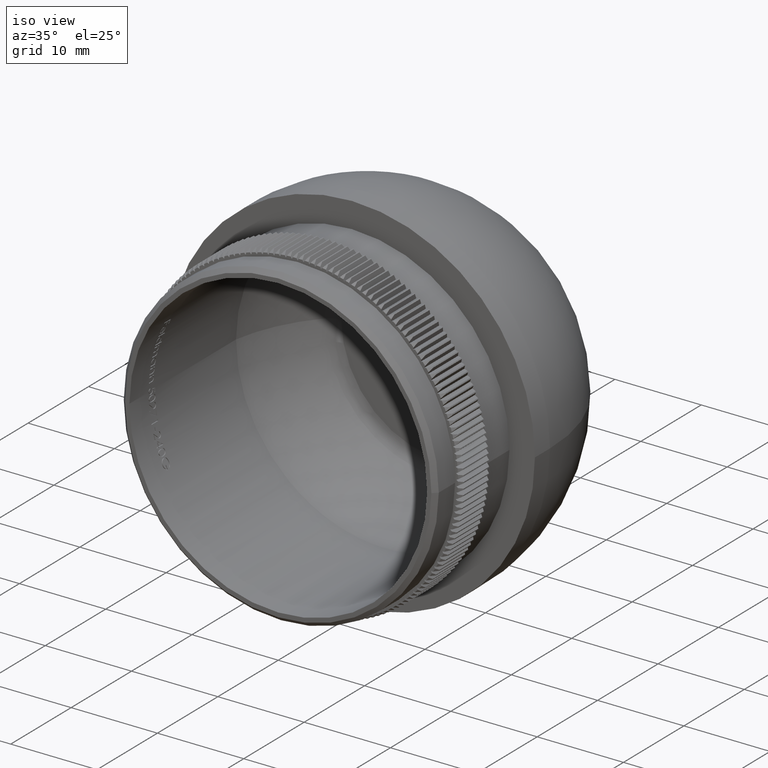
[diagram: clean part render]
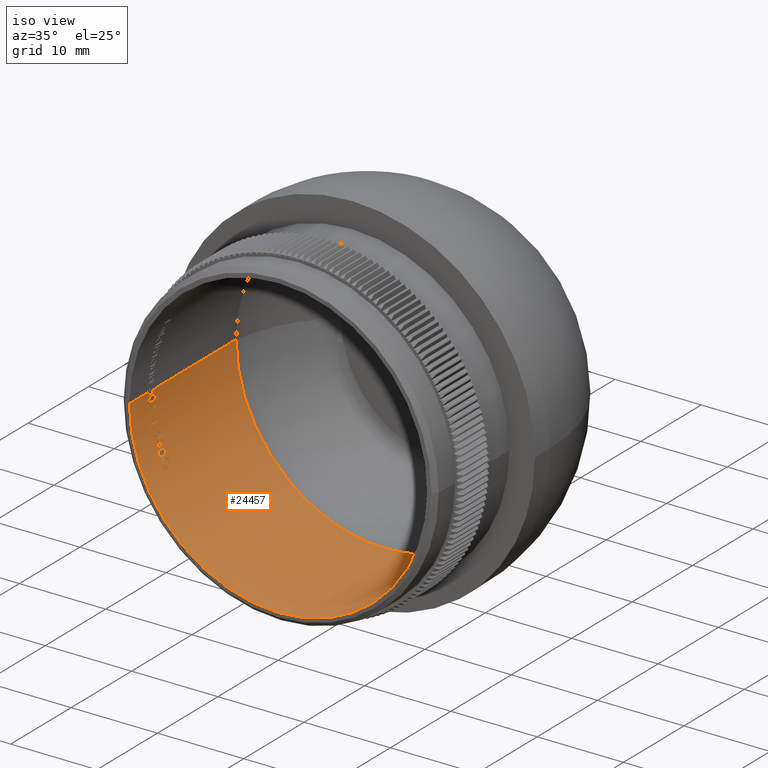
[diagram: same view with one face highlighted and labeled with its STEP entity id]
A machine part, iso view. The second image highlights one B-rep face of the part: STEP entity #24457.
In plain terms, the highlighted cylindrical surface (partial cylindrical patch) has radius 17.25 mm, axis along (-0, -1, -0).
Its self-contained STEP definition (entity closure, byte-faithful):
#47 = AXIS2_PLACEMENT_3D ( 'NONE', #24044, #29712, #23913 ) ;
#61 = CIRCLE ( 'NONE', #47, 17.25000000000003600 ) ;
#113 = AXIS2_PLACEMENT_3D ( 'NONE', #10710, #7233, #25044 ) ;
#117 = ORIENTED_EDGE ( 'NONE', *, *, #36204, .T. ) ;
#138 = VECTOR ( 'NONE', #28071, 1000.000000000000000 ) ;
#153 = ORIENTED_EDGE ( 'NONE', *, *, #12604, .T. ) ;
#189 = VERTEX_POINT ( 'NONE', #16901 ) ;
#391 = ORIENTED_EDGE ( 'NONE', *, *, #28703, .T. ) ;
#405 = CARTESIAN_POINT ( 'NONE',  ( -15.95822519628778800, 3.982782536329463300, -6.549631705506928200 ) ) ;
#461 = DIRECTION ( 'NONE',  ( -0.0000000000000000000, -1.000000000000000000, -0.0000000000000000000 ) ) ;
#510 = B_SPLINE_CURVE_WITH_KNOTS ( 'NONE', 3,
 ( #29933, #27097, #21413, #24273, #32933, #9545, #9421, #12396, #33061, #35984 ),
 .UNSPECIFIED., .F., .F.,
 ( 4, 2, 2, 2, 4 ),
 ( 6.098637220230962400E-020, 0.0001337976591428105700, 0.0002675953182856210900, 0.0004013929774284316300, 0.0005351906365712421700 ),
 .UNSPECIFIED. ) ;
#619 = CARTESIAN_POINT ( 'NONE',  ( -17.22975375394110000, 4.285470085470094200, -0.8355151575854766800 ) ) ;
#710 = VERTEX_POINT ( 'NONE', #5129 ) ;
#755 = CARTESIAN_POINT ( 'NONE',  ( -15.89091205762947500, 3.663774147214095700, -6.711290300405209100 ) ) ;
#829 = CARTESIAN_POINT ( 'NONE',  ( -15.37453008097561600, 3.715598290598299600, -7.822168803418804800 ) ) ;
#887 = CARTESIAN_POINT ( 'NONE',  ( -16.09397043541271800, 3.172863247863256100, -6.208592080662398000 ) ) ;
#890 = VERTEX_POINT ( 'NONE', #23835 ) ;
#899 = B_SPLINE_CURVE_WITH_KNOTS ( 'NONE', 3,
 ( #22639, #28328, #34617, #34234, #13731, #16694, #25597, #31667, #7927, #16562 ),
 .UNSPECIFIED., .F., .F.,
 ( 4, 2, 2, 2, 4 ),
 ( 0.0000000000000000000, 0.0001264816588129667300, 0.0002529633176259334600, 0.0003794449764389001600, 0.0005059266352518669200 ),
 .UNSPECIFIED. ) ;
#907 = CARTESIAN_POINT ( 'NONE',  ( -17.10683122483331800, 3.202963386689933400, -2.218014006824245800 ) ) ;
#947 = DIRECTION ( 'NONE',  ( -1.388827867340710000E-015, -1.000000000000000000, -0.0000000000000000000 ) ) ;
#1008 = CARTESIAN_POINT ( 'NONE',  ( -16.22603933179276600, 3.728742654914538200, -5.854754273504278600 ) ) ;
#1057 = CIRCLE ( 'NONE', #25149, 17.25000000000003600 ) ;
#1085 = CARTESIAN_POINT ( 'NONE',  ( -16.09397043541271400, 4.285470085470094200, -6.208592080662398000 ) ) ;
#1124 = CARTESIAN_POINT ( 'NONE',  ( -15.60634723095555300, 4.172343201162688000, -7.348877589032557700 ) ) ;
#1135 = CARTESIAN_POINT ( 'NONE',  ( -16.11693658905775800, 3.173869024611156900, -6.149059002473929800 ) ) ;
#1189 = EDGE_LOOP ( 'NONE', ( #21536, #25885, #33009, #153, #21596, #17521, #32741, #23002, #13103, #34802, #16547, #7465, #31757 ) ) ;
#1217 = DIRECTION ( 'NONE',  ( 0.0000000000000000000, 0.0000000000000000000, 1.000000000000000000 ) ) ;
#1298 = CARTESIAN_POINT ( 'NONE',  ( -17.16831367474718200, 4.176923076923085200, -1.676754473824789700 ) ) ;
#1373 = CARTESIAN_POINT ( 'NONE',  ( -15.44955824049319700, 4.000534188034196200, -7.672916666666668400 ) ) ;
#1386 = EDGE_CURVE ( 'NONE', #24400, #35917, #28785, .T. ) ;
#1411 = CARTESIAN_POINT ( 'NONE',  ( -17.25000000000003600, 32.20000000000001000, 2.112515728529188800E-015 ) ) ;
#1485 = CARTESIAN_POINT ( 'NONE',  ( -17.19050353382780500, 3.932692307692315900, -1.431463675213678700 ) ) ;
#1531 = CARTESIAN_POINT ( 'NONE',  ( -17.11198459023184900, 4.149786324786333600, -2.177724358974364000 ) ) ;
#1535 = CARTESIAN_POINT ( 'NONE',  ( -16.71158253446564900, 4.025197761642006700, -4.276192071193230000 ) ) ;
#1601 = CARTESIAN_POINT ( 'NONE',  ( -17.13366188194122200, 3.933357858644485700, -2.000033058411153400 ) ) ;
#1621 = DIRECTION ( 'NONE',  ( -1.388827867340710000E-015, -1.000000000000000000, -0.0000000000000000000 ) ) ;
#1632 = ORIENTED_EDGE ( 'NONE', *, *, #20163, .T. ) ;
#1676 = CARTESIAN_POINT ( 'NONE',  ( -15.42694631304995800, 3.555647397234006600, -7.718285214940107300 ) ) ;
#1734 = CARTESIAN_POINT ( 'NONE',  ( -16.22590623821399400, 3.791824691859951200, -5.855123132988893500 ) ) ;
#1809 = CARTESIAN_POINT ( 'NONE',  ( -15.51803998135396300, 3.331985218788105800, -7.533581476539504600 ) ) ;
#1865 = CARTESIAN_POINT ( 'NONE',  ( -15.42248462674312200, 3.607051282051290600, -7.727190170940173400 ) ) ;
#1897 = CARTESIAN_POINT ( 'NONE',  ( -4.027600815288056700E-014, 3.200000000000008200, 0.0000000000000000000 ) ) ;
#1926 = CARTESIAN_POINT ( 'NONE',  ( -16.71385775233419600, 3.932692307692317700, -4.267254273504278200 ) ) ;
#1946 = CARTESIAN_POINT ( 'NONE',  ( -15.37453008097561600, 3.715598290598299600, -7.822168803418804800 ) ) ;
#2001 = ORIENTED_EDGE ( 'NONE', *, *, #36872, .T. ) ;
#2019 = CARTESIAN_POINT ( 'NONE',  ( -17.22334049066104800, 3.191684203281644800, -0.9601065934641573900 ) ) ;
#2066 = CARTESIAN_POINT ( 'NONE',  ( -15.50388401162605100, 3.227188319836146400, -7.562880461974769400 ) ) ;
#2067 = EDGE_CURVE ( 'NONE', #28205, #18075, #33396, .T. ) ;
#2072 = CARTESIAN_POINT ( 'NONE',  ( -16.68932065945053400, 3.932692307692316800, -4.362232905982911500 ) ) ;
#2141 = CARTESIAN_POINT ( 'NONE',  ( -17.23930486761473400, 3.260868350915142200, -0.6094952657212654400 ) ) ;
#2150 = ORIENTED_EDGE ( 'NONE', *, *, #6558, .T. ) ;
#2157 = VERTEX_POINT ( 'NONE', #9861 ) ;
#2167 = B_SPLINE_CURVE_WITH_KNOTS ( 'NONE', 3,
 ( #887, #1135, #27606, #6711, #30570, #27347, #12522, #36111, #36367, #1008 ),
 .UNSPECIFIED., .F., .F.,
 ( 4, 2, 2, 2, 4 ),
 ( 0.0000000000000000000, 0.0001893416288593694900, 0.0003786832577187389700, 0.0005680248865781084300, 0.0007573665154374779500 ),
 .UNSPECIFIED. ) ;
#2198 = ORIENTED_EDGE ( 'NONE', *, *, #28655, .T. ) ;
#2204 = DIRECTION ( 'NONE',  ( 0.0000000000000000000, 0.0000000000000000000, -1.000000000000000000 ) ) ;
#2287 = DIRECTION ( 'NONE',  ( -1.388827867340710000E-015, -1.000000000000000000, -0.0000000000000000000 ) ) ;
#2398 = CARTESIAN_POINT ( 'NONE',  ( -17.24326356237123300, 3.667042353065986600, -0.4820392615596530400 ) ) ;
#2408 = CARTESIAN_POINT ( 'NONE',  ( -16.04736617046438600, 3.189891249567353300, -6.328319830651380200 ) ) ;
#2506 = CARTESIAN_POINT ( 'NONE',  ( -17.24596398430574200, 3.545781583867529700, -0.3731303418803483300 ) ) ;
#2773 = AXIS2_PLACEMENT_3D ( 'NONE', #35726, #9543, #29303 ) ;
#2796 = ORIENTED_EDGE ( 'NONE', *, *, #20328, .T. ) ;
#2815 = CARTESIAN_POINT ( 'NONE',  ( -17.16541004702837400, 3.638004139957273300, -1.706223290598293900 ) ) ;
#2960 = VERTEX_POINT ( 'NONE', #37516 ) ;
#2980 = CARTESIAN_POINT ( 'NONE',  ( -3.880616532661164800E-014, 4.258333333333343500, 0.0000000000000000000 ) ) ;
#3014 = ORIENTED_EDGE ( 'NONE', *, *, #37212, .T. ) ;
#3028 = VERTEX_POINT ( 'NONE', #16751 ) ;
#3074 = VERTEX_POINT ( 'NONE', #35076 ) ;
#3106 =( BOUNDED_CURVE ( )  B_SPLINE_CURVE ( 3, ( #16266, #13065, #13313, #36652 ),
 .UNSPECIFIED., .F., .T. ) 
 B_SPLINE_CURVE_WITH_KNOTS ( ( 4, 4 ),
 ( 1.818333906263068800, 1.842954876081687400 ),
 .UNSPECIFIED. ) 
 CURVE ( )  GEOMETRIC_REPRESENTATION_ITEM ( )  RATIONAL_B_SPLINE_CURVE ( ( 1.000000000000000000, 0.9999494846250628300, 0.9999494846250628300, 1.000000000000000000 ) ) 
 REPRESENTATION_ITEM ( '' )  );
#3173 = CARTESIAN_POINT ( 'NONE',  ( -15.88496682851863500, 3.885051971400927500, -6.725431948561727300 ) ) ;
#3181 = EDGE_CURVE ( 'NONE', #14455, #13224, #22395, .T. ) ;
#3276 = ORIENTED_EDGE ( 'NONE', *, *, #17108, .T. ) ;
#3280 = AXIS2_PLACEMENT_3D ( 'NONE', #7075, #16478, #37111 ) ;
#3321 = EDGE_CURVE ( 'NONE', #6081, #8652, #5844, .T. ) ;
#3347 = ORIENTED_EDGE ( 'NONE', *, *, #10388, .T. ) ;
#3383 = CARTESIAN_POINT ( 'NONE',  ( -15.94824834720549200, 3.728742654914538200, -6.573878205128209200 ) ) ;
#3417 = VERTEX_POINT ( 'NONE', #10398 ) ;
#3457 = ORIENTED_EDGE ( 'NONE', *, *, #23405, .T. ) ;
#3513 = ORIENTED_EDGE ( 'NONE', *, *, #14391, .T. ) ;
#3520 = CARTESIAN_POINT ( 'NONE',  ( -17.16375695655149500, 4.284495014017116100, -1.723281336344987300 ) ) ;
#3521 = EDGE_CURVE ( 'NONE', #22370, #32928, #20236, .T. ) ;
#3541 = EDGE_CURVE ( 'NONE', #4442, #189, #25441, .T. ) ;
#3557 = CARTESIAN_POINT ( 'NONE',  ( -17.24679661494607800, 4.258333333333343500, -0.3324252136752201000 ) ) ;
#3570 = DIRECTION ( 'NONE',  ( 1.000000000000000000, -1.206764157201254600E-015, 0.0000000000000000000 ) ) ;
#3625 = VERTEX_POINT ( 'NONE', #35789 ) ;
#3653 = CARTESIAN_POINT ( 'NONE',  ( -4.027600815288056700E-014, 3.200000000000008200, 0.0000000000000000000 ) ) ;
#3696 = B_SPLINE_CURVE_WITH_KNOTS ( 'NONE', 3,
 ( #1926, #19206, #1535, #19464, #16635, #28403, #28520, #10836, #13806, #7358 ),
 .UNSPECIFIED., .F., .F.,
 ( 4, 2, 2, 2, 4 ),
 ( 8.673617379884035500E-019, 0.0001386732632606880900, 0.0002773465265213753100, 0.0004160197897820625600, 0.0005546930530427497500 ),
 .UNSPECIFIED. ) ;
#3710 = VERTEX_POINT ( 'NONE', #829 ) ;
#3751 = CARTESIAN_POINT ( 'NONE',  ( -15.89164177254609100, 3.729590678418811800, -6.709561965811968100 ) ) ;
#3802 = EDGE_LOOP ( 'NONE', ( #391, #16194, #12574, #31453, #8371, #3014 ) ) ;
#3806 = EDGE_LOOP ( 'NONE', ( #23798, #27050, #21953, #6021, #23896, #3457, #36028, #21990, #36509, #5317 ) ) ;
#3885 = CARTESIAN_POINT ( 'NONE',  ( -16.59001995069544200, 3.732365823238287900, -4.726045416335630000 ) ) ;
#4011 = CARTESIAN_POINT ( 'NONE',  ( -16.53026975531806300, 3.932985601357261700, -4.930789358771416000 ) ) ;
#4023 = CARTESIAN_POINT ( 'NONE',  ( -15.66963289314971100, 3.174079462202497500, -7.213444955289459900 ) ) ;
#4025 = CARTESIAN_POINT ( 'NONE',  ( -15.42249651980623100, 4.052014904308387100, -7.727225993725157900 ) ) ;
#4038 = VECTOR ( 'NONE', #5415, 1000.000000000000000 ) ;
#4066 = CARTESIAN_POINT ( 'NONE',  ( -17.19485002678182900, 4.110088507603008700, -1.378372403998140900 ) ) ;
#4106 = EDGE_CURVE ( 'NONE', #22202, #20098, #61, .T. ) ;
#4230 =( BOUNDED_CURVE ( )  B_SPLINE_CURVE ( 3, ( #10679, #31456, #13650, #34535 ),
 .UNSPECIFIED., .F., .T. ) 
 B_SPLINE_CURVE_WITH_KNOTS ( ( 4, 4 ),
 ( 4.547644403476523300, 4.580253911936583900 ),
 .UNSPECIFIED. ) 
 CURVE ( )  GEOMETRIC_REPRESENTATION_ITEM ( )  RATIONAL_B_SPLINE_CURVE ( ( 1.000000000000000000, 0.9999113869596367700, 0.9999113869596367700, 1.000000000000000000 ) ) 
 REPRESENTATION_ITEM ( '' )  );
#4283 = CARTESIAN_POINT ( 'NONE',  ( -16.30939741817264400, 4.285470085470094200, -5.618367721688038300 ) ) ;
#4303 = CARTESIAN_POINT ( 'NONE',  ( -16.30273862985275800, 32.20000000000001000, -5.637660256410260500 ) ) ;
#4355 = CARTESIAN_POINT ( 'NONE',  ( -15.50721715452270600, 4.094207494846922500, -7.555784168515908800 ) ) ;
#4394 = CARTESIAN_POINT ( 'NONE',  ( -17.23539996563003700, 4.266357057916246200, -0.7114478941949963200 ) ) ;
#4395 = EDGE_CURVE ( 'NONE', #20098, #31686, #3696, .T. ) ;
#4417 = CARTESIAN_POINT ( 'NONE',  ( -16.62327360394476400, 4.176923076923085200, -4.607523704594021800 ) ) ;
#4422 = EDGE_CURVE ( 'NONE', #36282, #24869, #17618, .T. ) ;
#4442 = VERTEX_POINT ( 'NONE', #36600 ) ;
#4450 = CARTESIAN_POINT ( 'NONE',  ( -17.13698557400895700, 3.825406305847826300, -1.971388076043542300 ) ) ;
#4454 = CARTESIAN_POINT ( 'NONE',  ( -17.13350974949909000, 3.970853365384623400, -2.001335470085473300 ) ) ;
#4515 = AXIS2_PLACEMENT_3D ( 'NONE', #13971, #10762, #22758 ) ;
#4623 = CARTESIAN_POINT ( 'NONE',  ( -17.22669432328598700, 3.173781658388908200, -0.8986058583782083900 ) ) ;
#4660 = CARTESIAN_POINT ( 'NONE',  ( -17.24231550563332500, 4.034169761453308700, -0.5155348705864413200 ) ) ;
#4664 = CARTESIAN_POINT ( 'NONE',  ( -15.43501908121876700, 3.506406059039865100, -7.702182178855686300 ) ) ;
#4778 = VECTOR ( 'NONE', #6261, 1000.000000000000000 ) ;
#4782 = CARTESIAN_POINT ( 'NONE',  ( -17.19814838087367900, 3.932692307692317700, -1.336485042735046100 ) ) ;
#4800 = CARTESIAN_POINT ( 'NONE',  ( -15.40454427731272000, 3.427294398103528600, -7.762941824406382800 ) ) ;
#4828 = CARTESIAN_POINT ( 'NONE',  ( -17.24995346273085100, 3.891987179487188100, -0.04006911057692950900 ) ) ;
#4854 = EDGE_CURVE ( 'NONE', #34268, #33412, #23604, .T. ) ;
#4898 = VECTOR ( 'NONE', #13033, 1000.000000000000000 ) ;
#5062 = CARTESIAN_POINT ( 'NONE',  ( -16.68850471468954300, 3.965360271129619200, -4.365354601694805900 ) ) ;
#5129 = CARTESIAN_POINT ( 'NONE',  ( -16.74456101520202400, 3.661324786324794200, -4.145138888888893400 ) ) ;
#5132 = CARTESIAN_POINT ( 'NONE',  ( -15.94856765389688200, 3.665110534262780100, -6.573103566132125800 ) ) ;
#5139 = CARTESIAN_POINT ( 'NONE',  ( -17.15716707609653800, 3.591150841346162800, -1.787209535256413700 ) ) ;
#5203 = CIRCLE ( 'NONE', #3280, 17.25000000000003600 ) ;
#5230 = EDGE_CURVE ( 'NONE', #2157, #21887, #17550, .T. ) ;
#5247 = B_SPLINE_CURVE_WITH_KNOTS ( 'NONE', 3,
 ( #2506, #5483, #26124, #14375, #18350, #32723, #21332, #18104, #35532, #9460 ),
 .UNSPECIFIED., .F., .F.,
 ( 4, 2, 2, 2, 4 ),
 ( 0.0000000000000000000, 0.0001459498541572821800, 0.0002918997083145643700, 0.0004378495624718464700, 0.0005837994166291286300 ),
 .UNSPECIFIED. ) ;
#5255 = CARTESIAN_POINT ( 'NONE',  ( -16.09397043541271800, 3.172863247863256100, -6.208592080662398000 ) ) ;
#5302 = CARTESIAN_POINT ( 'NONE',  ( -16.30273862985275800, 32.20000000000001000, -5.637660256410260500 ) ) ;
#5317 = ORIENTED_EDGE ( 'NONE', *, *, #12878, .T. ) ;
#5362 = ORIENTED_EDGE ( 'NONE', *, *, #11825, .T. ) ;
#5378 = DIRECTION ( 'NONE',  ( 0.0000000000000000000, 1.000000000000000000, -0.0000000000000000000 ) ) ;
#5415 = DIRECTION ( 'NONE',  ( -1.388827867340710000E-015, -1.000000000000000000, -0.0000000000000000000 ) ) ;
#5452 = FACE_BOUND ( 'NONE', #13235, .T. ) ;
#5483 = CARTESIAN_POINT ( 'NONE',  ( -17.24598879576022600, 3.496601228583300400, -0.3719835644614971100 ) ) ;
#5534 = EDGE_CURVE ( 'NONE', #36004, #34268, #34652, .T. ) ;
#5566 = DIRECTION ( 'NONE',  ( -1.388827867340710000E-015, -1.000000000000000000, -0.0000000000000000000 ) ) ;
#5575 = DIRECTION ( 'NONE',  ( -0.0000000000000000000, -1.000000000000000000, -0.0000000000000000000 ) ) ;
#5649 = CARTESIAN_POINT ( 'NONE',  ( -15.44209554474674000, 4.141410096135174100, -7.688280176630575700 ) ) ;
#5699 = VERTEX_POINT ( 'NONE', #1085 ) ;
#5728 = CARTESIAN_POINT ( 'NONE',  ( -15.96589908011743700, 4.043903200535016400, -6.530971146650933300 ) ) ;
#5811 = VERTEX_POINT ( 'NONE', #18631 ) ;
#5844 = B_SPLINE_CURVE_WITH_KNOTS ( 'NONE', 3,
 ( #16981, #24996, #11065, #7177, #27834, #27951, #19817, #1485 ),
 .UNSPECIFIED., .F., .F.,
 ( 4, 2, 2, 4 ),
 ( 0.0000000000000000000, 9.552843244094570700E-005, 0.0001910568648818914100, 0.0003821137297637822300 ),
 .UNSPECIFIED. ) ;
#5981 = CARTESIAN_POINT ( 'NONE',  ( -17.04237786590029600, 4.149786324786333600, -2.668305956196586100 ) ) ;
#6005 = DIRECTION ( 'NONE',  ( 0.0000000000000000000, 1.000000000000000000, -0.0000000000000000000 ) ) ;
#6021 = ORIENTED_EDGE ( 'NONE', *, *, #27737, .T. ) ;
#6051 = ORIENTED_EDGE ( 'NONE', *, *, #3181, .T. ) ;
#6081 = VERTEX_POINT ( 'NONE', #26754 ) ;
#6261 = DIRECTION ( 'NONE',  ( -1.388827867340710000E-015, -1.000000000000000000, -0.0000000000000000000 ) ) ;
#6298 = CARTESIAN_POINT ( 'NONE',  ( -15.73731211356952800, 3.317785676148105700, -7.064742894603415200 ) ) ;
#6308 = CARTESIAN_POINT ( 'NONE',  ( -17.15716707609653800, 3.591150841346162800, -1.787209535256413700 ) ) ;
#6344 = CARTESIAN_POINT ( 'NONE',  ( -16.33527411510848300, 3.200000000000008200, -5.542681623931628100 ) ) ;
#6377 = CARTESIAN_POINT ( 'NONE',  ( -16.84010691900766000, 3.552777777777786000, -3.738087606837611400 ) ) ;
#6414 = VERTEX_POINT ( 'NONE', #4782 ) ;
#6439 = B_SPLINE_CURVE_WITH_KNOTS ( 'NONE', 3,
 ( #6545, #15049, #18263, #33144, #21248, #6298, #33014, #9499 ),
 .UNSPECIFIED., .F., .F.,
 ( 4, 2, 2, 4 ),
 ( 0.0000000000000000000, 0.0001964953787583689200, 0.0003929907575167378300, 0.0007859815150334750100 ),
 .UNSPECIFIED. ) ;
#6484 = CARTESIAN_POINT ( 'NONE',  ( -17.21095229240793500, 4.036505855157175300, -1.160349264197930700 ) ) ;
#6486 = CARTESIAN_POINT ( 'NONE',  ( -15.94965743721654800, 3.856693387929656300, -6.570468364481998300 ) ) ;
#6520 = ORIENTED_EDGE ( 'NONE', *, *, #28434, .T. ) ;
#6529 = CARTESIAN_POINT ( 'NONE',  ( -15.83985306672161500, 4.088438793096013800, -6.831180804999632100 ) ) ;
#6545 = CARTESIAN_POINT ( 'NONE',  ( -15.85120586095005800, 3.733830795940179300, -6.804540598290600400 ) ) ;
#6558 = EDGE_CURVE ( 'NONE', #22304, #29258, #29488, .T. ) ;
#6572 = ORIENTED_EDGE ( 'NONE', *, *, #34273, .T. ) ;
#6581 = CARTESIAN_POINT ( 'NONE',  ( -17.22975375394110400, 3.172863247863256100, -0.8355151575854766800 ) ) ;
#6590 = CARTESIAN_POINT ( 'NONE',  ( -17.14447719880583800, 3.929686300293170600, -1.905099257437990800 ) ) ;
#6690 = VECTOR ( 'NONE', #31877, 1000.000000000000000 ) ;
#6711 = CARTESIAN_POINT ( 'NONE',  ( -16.17705356562291600, 3.254987795064033100, -5.989018268078884200 ) ) ;
#6717 = VERTEX_POINT ( 'NONE', #26835 ) ;
#6749 = CARTESIAN_POINT ( 'NONE',  ( -15.63021025861480200, 3.172863247863256100, -7.297878271901711700 ) ) ;
#6864 = DIRECTION ( 'NONE',  ( -1.388827867340710000E-015, -1.000000000000000000, -0.0000000000000000000 ) ) ;
#7054 = AXIS2_PLACEMENT_3D ( 'NONE', #28670, #17284, #2204 ) ;
#7075 = CARTESIAN_POINT ( 'NONE',  ( -4.027600815288056700E-014, 3.200000000000008200, 0.0000000000000000000 ) ) ;
#7127 = DIRECTION ( 'NONE',  ( 0.0000000000000000000, 1.000000000000000000, -0.0000000000000000000 ) ) ;
#7177 = CARTESIAN_POINT ( 'NONE',  ( -17.17997796415825800, 4.149064242875556200, -1.552986760733195100 ) ) ;
#7217 = CARTESIAN_POINT ( 'NONE',  ( -16.60255667210238800, 3.684837264289532000, -4.681856630555320600 ) ) ;
#7233 = DIRECTION ( 'NONE',  ( -0.0000000000000000000, -1.000000000000000000, -0.0000000000000000000 ) ) ;
#7271 = EDGE_CURVE ( 'NONE', #33985, #29053, #32238, .T. ) ;
#7281 = EDGE_CURVE ( 'NONE', #29179, #21373, #19750, .T. ) ;
#7287 = CARTESIAN_POINT ( 'NONE',  ( -17.14630929263338600, 3.700808676834505200, -1.889020860128207500 ) ) ;
#7292 = CARTESIAN_POINT ( 'NONE',  ( -16.22603933179276600, 3.728742654914538200, -5.854754273504278600 ) ) ;
#7358 = CARTESIAN_POINT ( 'NONE',  ( -16.62192130044946800, 4.285470085470094200, -4.612399839743594600 ) ) ;
#7360 = CARTESIAN_POINT ( 'NONE',  ( -3.880616532661164800E-014, 4.258333333333343500, 0.0000000000000000000 ) ) ;
#7461 =( BOUNDED_CURVE ( )  B_SPLINE_CURVE ( 3, ( #8566, #17328, #17849, #20555 ),
 .UNSPECIFIED., .F., .T. ) 
 B_SPLINE_CURVE_WITH_KNOTS ( ( 4, 4 ),
 ( 1.698134774063404100, 1.726104330583008800 ),
 .UNSPECIFIED. ) 
 CURVE ( )  GEOMETRIC_REPRESENTATION_ITEM ( )  RATIONAL_B_SPLINE_CURVE ( ( 1.000000000000000000, 0.9999348097214788600, 0.9999348097214788600, 1.000000000000000000 ) ) 
 REPRESENTATION_ITEM ( '' )  );
#7465 = ORIENTED_EDGE ( 'NONE', *, *, #8237, .T. ) ;
#7616 = CARTESIAN_POINT ( 'NONE',  ( -17.24326360733333600, 3.790361123057626200, -0.4820376519886677100 ) ) ;
#7708 = CARTESIAN_POINT ( 'NONE',  ( -17.21717020574436700, 3.261511393170180900, -1.065041048263508600 ) ) ;
#7741 = CARTESIAN_POINT ( 'NONE',  ( -17.24319438835956200, 3.851703087025168500, -0.4845738461508765600 ) ) ;
#7822 =( BOUNDED_CURVE ( )  B_SPLINE_CURVE ( 3, ( #24785, #27368, #907, #19075 ),
 .UNSPECIFIED., .F., .F. ) 
 B_SPLINE_CURVE_WITH_KNOTS ( ( 4, 4 ),
 ( 1.438661258346788200, 1.443457879526385900 ),
 .UNSPECIFIED. ) 
 CURVE ( )  GEOMETRIC_REPRESENTATION_ITEM ( )  RATIONAL_B_SPLINE_CURVE ( ( 1.000000000000000000, 0.9999980827030239300, 0.9999980827030239300, 1.000000000000000000 ) ) 
 REPRESENTATION_ITEM ( '' )  );
#7846 = DIRECTION ( 'NONE',  ( 1.388827867340710000E-015, 1.000000000000000000, 0.0000000000000000000 ) ) ;
#7880 = CARTESIAN_POINT ( 'NONE',  ( -17.13191940474730000, 3.200000000000008200, -2.014903846153849500 ) ) ;
#7882 = CARTESIAN_POINT ( 'NONE',  ( -15.46207335072525200, 3.421949730740265800, -7.647725939824303200 ) ) ;
#7900 = EDGE_LOOP ( 'NONE', ( #13484, #38170, #24771, #29371 ) ) ;
#7927 = CARTESIAN_POINT ( 'NONE',  ( -16.53026278306130300, 4.013872302332326400, -4.930812726188704300 ) ) ;
#7928 = DIRECTION ( 'NONE',  ( -1.388827867340710000E-015, -1.000000000000000000, -0.0000000000000000000 ) ) ;
#7936 = VERTEX_POINT ( 'NONE', #36021 ) ;
#8136 = DIRECTION ( 'NONE',  ( 1.000000000000000000, -1.388827867340710000E-015, 0.0000000000000000000 ) ) ;
#8145 = CIRCLE ( 'NONE', #7054, 17.25000000000003600 ) ;
#8147 = CARTESIAN_POINT ( 'NONE',  ( -16.67618213283664400, 4.086460432463979100, -4.412256962505218800 ) ) ;
#8187 = LINE ( 'NONE', #17267, #4038 ) ;
#8237 = EDGE_CURVE ( 'NONE', #12725, #35917, #20621, .T. ) ;
#8240 = EDGE_CURVE ( 'NONE', #13555, #3710, #8145, .T. ) ;
#8257 = CARTESIAN_POINT ( 'NONE',  ( -16.25999645033936900, 32.20000000000001000, -5.759775641025645300 ) ) ;
#8314 = DIRECTION ( 'NONE',  ( 0.0000000000000000000, 0.0000000000000000000, -1.000000000000000000 ) ) ;
#8339 = B_SPLINE_CURVE_WITH_KNOTS ( 'NONE', 3,
 ( #29932, #21169, #9935, #24527, #9676, #24269, #6590, #21788 ),
 .UNSPECIFIED., .F., .F.,
 ( 4, 2, 2, 4 ),
 ( 6.133173666733496700E-019, 0.0001964481522343896200, 0.0002946722283515849300, 0.0003928963044687803200 ),
 .UNSPECIFIED. ) ;
#8346 = CARTESIAN_POINT ( 'NONE',  ( -3.895691843699820600E-014, 4.149786324786332700, 0.0000000000000000000 ) ) ;
#8371 = ORIENTED_EDGE ( 'NONE', *, *, #25884, .T. ) ;
#8382 = CARTESIAN_POINT ( 'NONE',  ( -16.56707943628499500, 4.075422863646677400, -4.805679280368832600 ) ) ;
#8439 = CARTESIAN_POINT ( 'NONE',  ( -3.993681365451081600E-014, 3.444230769230775600, 0.0000000000000000000 ) ) ;
#8566 = CARTESIAN_POINT ( 'NONE',  ( -17.11033381166040400, 3.218020499465820400, -2.190656717414535000 ) ) ;
#8578 = CARTESIAN_POINT ( 'NONE',  ( -15.59424707562296300, 3.607051282051291900, -7.374412393162395500 ) ) ;
#8609 = CARTESIAN_POINT ( 'NONE',  ( -15.47767322189395300, 4.196289376072681600, -7.616582278108743300 ) ) ;
#8652 = VERTEX_POINT ( 'NONE', #16217 ) ;
#8672 = VECTOR ( 'NONE', #31501, 1000.000000000000000 ) ;
#8689 = CARTESIAN_POINT ( 'NONE',  ( -17.22671015415201300, 4.284370145716144900, -0.8982793988029028600 ) ) ;
#8707 = EDGE_CURVE ( 'NONE', #18240, #22113, #24345, .T. ) ;
#8721 = VECTOR ( 'NONE', #12480, 1000.000000000000000 ) ;
#8739 = DIRECTION ( 'NONE',  ( 0.0000000000000000000, 0.0000000000000000000, 1.000000000000000000 ) ) ;
#8740 = EDGE_CURVE ( 'NONE', #29053, #16053, #4230, .T. ) ;
#8793 = EDGE_CURVE ( 'NONE', #34632, #23565, #31191, .T. ) ;
#8851 = EDGE_LOOP ( 'NONE', ( #5362, #18809, #20732, #37233, #20369, #1632 ) ) ;
#8852 = CARTESIAN_POINT ( 'NONE',  ( -16.94114607739782800, 32.20000000000001000, -3.249626068376078300 ) ) ;
#8923 = CARTESIAN_POINT ( 'NONE',  ( -16.59226254503386500, 3.591150841346162400, -4.717978766025645100 ) ) ;
#9050 = B_SPLINE_CURVE_WITH_KNOTS ( 'NONE', 3,
 ( #4417, #19625, #19365, #31387, #16914, #8147, #37550, #37167, #5062, #2072 ),
 .UNSPECIFIED., .F., .F.,
 ( 4, 2, 2, 2, 4 ),
 ( 0.0000000000000000000, 9.714557762869768700E-005, 0.0001942911552573953700, 0.0002914367328860930700, 0.0003885823105147907500 ),
 .UNSPECIFIED. ) ;
#9109 = CARTESIAN_POINT ( 'NONE',  ( -15.85891623575128800, 4.025140751535780700, -6.786632586584928200 ) ) ;
#9157 = EDGE_CURVE ( 'NONE', #6414, #20672, #34018, .T. ) ;
#9216 = CARTESIAN_POINT ( 'NONE',  ( -17.14092159794156300, 4.167337147105632400, -1.937056251173247200 ) ) ;
#9338 = CARTESIAN_POINT ( 'NONE',  ( -17.13811290987668600, 4.132123780714974400, -1.961593305590468000 ) ) ;
#9421 = CARTESIAN_POINT ( 'NONE',  ( -17.24672386963144900, 3.720382052652242900, -0.3365198336984572300 ) ) ;
#9458 = CARTESIAN_POINT ( 'NONE',  ( -17.13350974949909000, 3.970853365384623400, -2.001335470085473300 ) ) ;
#9460 = CARTESIAN_POINT ( 'NONE',  ( -17.24999952969040600, 3.172863247863256100, -0.004028111645305572000 ) ) ;
#9487 = ORIENTED_EDGE ( 'NONE', *, *, #3321, .T. ) ;
#9499 = CARTESIAN_POINT ( 'NONE',  ( -15.62634708768907300, 3.281410256410265200, -7.306146501068378800 ) ) ;
#9543 = DIRECTION ( 'NONE',  ( 0.0000000000000000000, 1.000000000000000000, -0.0000000000000000000 ) ) ;
#9545 = CARTESIAN_POINT ( 'NONE',  ( -17.24720057279416700, 3.759424261650600000, -0.3122758815129921800 ) ) ;
#9588 = CARTESIAN_POINT ( 'NONE',  ( -17.13365815221146700, 4.013156637277552000, -2.000064988770673400 ) ) ;
#9592 = CARTESIAN_POINT ( 'NONE',  ( 17.25000000000003600, 32.19999999999997400, 0.0000000000000000000 ) ) ;
#9676 = CARTESIAN_POINT ( 'NONE',  ( -17.14782226585600700, 3.836965793273863700, -1.874793907256947500 ) ) ;
#9677 = CARTESIAN_POINT ( 'NONE',  ( -16.74456101520202400, 3.552777777777786000, -4.145138888888893400 ) ) ;
#9678 = VERTEX_POINT ( 'NONE', #37358 ) ;
#9717 = CARTESIAN_POINT ( 'NONE',  ( -15.81064827977751400, 3.305365285180180900, -6.898555336042774000 ) ) ;
#9740 = B_SPLINE_CURVE_WITH_KNOTS ( 'NONE', 3,
 ( #10071, #7217, #3885, #15467, #33559, #33327, #21931, #12784 ),
 .UNSPECIFIED., .F., .F.,
 ( 4, 2, 2, 4 ),
 ( 0.0000000000000000000, 0.0001980478081333578400, 0.0002970717122000372700, 0.0003960956162667167000 ),
 .UNSPECIFIED. ) ;
#9823 = CARTESIAN_POINT ( 'NONE',  ( -4.012525504249401000E-014, 3.308547008547015900, 0.0000000000000000000 ) ) ;
#9861 = CARTESIAN_POINT ( 'NONE',  ( -16.52582275761787400, 3.200000000000008200, -4.945673076923081400 ) ) ;
#9891 = CARTESIAN_POINT ( 'NONE',  ( -17.25000000000007800, 3.172916447240160800, -0.001342558823818352500 ) ) ;
#9935 = CARTESIAN_POINT ( 'NONE',  ( -17.15630216088100100, 3.733047241123272500, -1.795955635913490100 ) ) ;
#10007 = CARTESIAN_POINT ( 'NONE',  ( -17.18754362532285300, 4.215529104423799500, -1.466923512669524100 ) ) ;
#10071 = CARTESIAN_POINT ( 'NONE',  ( -16.61507750077574000, 3.638004139957273300, -4.636992521367526300 ) ) ;
#10162 = EDGE_CURVE ( 'NONE', #31686, #28168, #899, .T. ) ;
#10215 = CARTESIAN_POINT ( 'NONE',  ( -17.16251370391500700, 4.172359693775671700, -1.735327503104196100 ) ) ;
#10249 = CARTESIAN_POINT ( 'NONE',  ( -17.25000000000007500, 3.889600630797731600, 3.351667020637903700E-014 ) ) ;
#10359 = LINE ( 'NONE', #8852, #12659 ) ;
#10373 = CARTESIAN_POINT ( 'NONE',  ( -17.19285881570312200, 4.149171050790773300, -1.403255574618596000 ) ) ;
#10388 = EDGE_CURVE ( 'NONE', #26386, #5811, #33276, .T. ) ;
#10398 = CARTESIAN_POINT ( 'NONE',  ( -17.11033381166040400, 3.218020499465820400, -2.190656717414535000 ) ) ;
#10450 = DIRECTION ( 'NONE',  ( 0.0000000000000000000, 0.0000000000000000000, -1.000000000000000000 ) ) ;
#10640 = CARTESIAN_POINT ( 'NONE',  ( -17.24679661494603900, 32.20000000000001000, -0.3324252136752201000 ) ) ;
#10679 = CARTESIAN_POINT ( 'NONE',  ( -17.01643977836523200, 4.258333333333343500, -2.829006410256415200 ) ) ;
#10710 = CARTESIAN_POINT ( 'NONE',  ( -3.876847704901500600E-014, 4.285470085470096000, 0.0000000000000000000 ) ) ;
#10762 = DIRECTION ( 'NONE',  ( -0.0000000000000000000, -1.000000000000000000, -0.0000000000000000000 ) ) ;
#10812 = CIRCLE ( 'NONE', #37573, 17.25000000000003600 ) ;
#10836 = CARTESIAN_POINT ( 'NONE',  ( -16.64688765667784100, 4.277853139132505000, -4.521669817761790000 ) ) ;
#10901 = VERTEX_POINT ( 'NONE', #28825 ) ;
#10991 = CARTESIAN_POINT ( 'NONE',  ( -15.37981510909509600, 3.567200126380622100, -7.811820362172718500 ) ) ;
#11040 = ORIENTED_EDGE ( 'NONE', *, *, #22908, .T. ) ;
#11065 = CARTESIAN_POINT ( 'NONE',  ( -17.17443902636295100, 4.171908385354157600, -1.613088608141953800 ) ) ;
#11072 = CARTESIAN_POINT ( 'NONE',  ( -15.94824834720549200, 3.728742654914538200, -6.573878205128209200 ) ) ;
#11082 = EDGE_CURVE ( 'NONE', #13299, #18240, #12661, .T. ) ;
#11178 = CARTESIAN_POINT ( 'NONE',  ( -16.52987728991989200, 3.970853365384623400, -4.932104700854705600 ) ) ;
#11222 = B_SPLINE_CURVE_WITH_KNOTS ( 'NONE', 3,
 ( #27755, #4011, #24663, #36519, #19076, #18835, #25041, #13044 ),
 .UNSPECIFIED., .F., .F.,
 ( 4, 2, 2, 4 ),
 ( 0.0000000000000000000, 0.0001124877544686202100, 0.0002249755089372404200, 0.0004499510178744793200 ),
 .UNSPECIFIED. ) ;
#11230 = CARTESIAN_POINT ( 'NONE',  ( -16.55815274866279600, 3.992314500875472600, -4.836329004677234700 ) ) ;
#11319 = EDGE_CURVE ( 'NONE', #19173, #30959, #29325, .T. ) ;
#11322 = DIRECTION ( 'NONE',  ( 0.0000000000000000000, 0.0000000000000000000, 1.000000000000000000 ) ) ;
#11351 = EDGE_CURVE ( 'NONE', #710, #36282, #14519, .T. ) ;
#11443 = CARTESIAN_POINT ( 'NONE',  ( -3.895691843699820600E-014, 4.149786324786332700, 0.0000000000000000000 ) ) ;
#11573 = DIRECTION ( 'NONE',  ( 1.388827867340710000E-015, 1.000000000000000000, 0.0000000000000000000 ) ) ;
#11579 = VERTEX_POINT ( 'NONE', #7292 ) ;
#11641 = CARTESIAN_POINT ( 'NONE',  ( -17.11198459023184900, 4.258333333333340000, -2.177724358974364000 ) ) ;
#11709 = CARTESIAN_POINT ( 'NONE',  ( -17.17899474668090700, 3.492158543303946100, -1.569554812805049400 ) ) ;
#11768 = EDGE_CURVE ( 'NONE', #35235, #23237, #10812, .T. ) ;
#11825 = EDGE_CURVE ( 'NONE', #3417, #28205, #7461, .T. ) ;
#11903 = B_SPLINE_CURVE_WITH_KNOTS ( 'NONE', 3,
 ( #18633, #15920, #9891, #15784 ),
 .UNSPECIFIED., .F., .F.,
 ( 4, 4 ),
 ( 0.0000000000000000000, 3.988622352888318200E-006 ),
 .UNSPECIFIED. ) ;
#11923 = CARTESIAN_POINT ( 'NONE',  ( -17.22975375394110000, 4.285470085470094200, -0.8355151575854766800 ) ) ;
#11962 = ORIENTED_EDGE ( 'NONE', *, *, #10162, .T. ) ;
#12044 = CARTESIAN_POINT ( 'NONE',  ( -17.22332274946893100, 4.267238310277505800, -0.9603721813152570300 ) ) ;
#12046 = CARTESIAN_POINT ( 'NONE',  ( -16.09397043541271400, 4.285470085470094200, -6.208592080662398000 ) ) ;
#12061 = CARTESIAN_POINT ( 'NONE',  ( -16.66528299691102100, 3.308547008547017200, -4.453183426816243800 ) ) ;
#12097 = EDGE_CURVE ( 'NONE', #32720, #6081, #36068, .T. ) ;
#12176 = CARTESIAN_POINT ( 'NONE',  ( -4.027600815288056700E-014, 3.200000000000008200, 0.0000000000000000000 ) ) ;
#12221 = CARTESIAN_POINT ( 'NONE',  ( -15.59424707562296300, 3.715598290598299200, -7.374412393162395500 ) ) ;
#12265 = CARTESIAN_POINT ( 'NONE',  ( -15.86793783301335600, 3.475500059788636100, -6.765474875713391800 ) ) ;
#12279 = ORIENTED_EDGE ( 'NONE', *, *, #12097, .T. ) ;
#12296 = DIRECTION ( 'NONE',  ( 0.0000000000000000000, 1.000000000000000000, -0.0000000000000000000 ) ) ;
#12310 = CIRCLE ( 'NONE', #37677, 17.25000000000002500 ) ;
#12396 = CARTESIAN_POINT ( 'NONE',  ( -17.24610572267037900, 3.636413005776302200, -0.3668340718410534900 ) ) ;
#12480 = DIRECTION ( 'NONE',  ( 1.388827867340710000E-015, 1.000000000000000000, 0.0000000000000000000 ) ) ;
#12522 = CARTESIAN_POINT ( 'NONE',  ( -16.21837830642439100, 3.477447076107393000, -5.875951002575223300 ) ) ;
#12574 = ORIENTED_EDGE ( 'NONE', *, *, #18825, .T. ) ;
#12604 = EDGE_CURVE ( 'NONE', #30959, #28475, #30174, .T. ) ;
#12659 = VECTOR ( 'NONE', #11573, 1000.000000000000000 ) ;
#12661 = B_SPLINE_CURVE_WITH_KNOTS ( 'NONE', 3,
 ( #11923, #8689, #12044, #15249, #18081, #6484, #35741, #32828, #18328, #27121 ),
 .UNSPECIFIED., .F., .F.,
 ( 4, 2, 2, 2, 4 ),
 ( 0.0000000000000000000, 0.0001863553277752951100, 0.0003727106555505902100, 0.0005590659833258853200, 0.0007454213111011804200 ),
 .UNSPECIFIED. ) ;
#12713 = ORIENTED_EDGE ( 'NONE', *, *, #36679, .T. ) ;
#12725 = VERTEX_POINT ( 'NONE', #32192 ) ;
#12784 = CARTESIAN_POINT ( 'NONE',  ( -16.55791989951150400, 3.962373130341888300, -4.837126068376072400 ) ) ;
#12878 = EDGE_CURVE ( 'NONE', #26975, #23789, #21365, .T. ) ;
#12966 = LINE ( 'NONE', #16864, #37889 ) ;
#12972 = CARTESIAN_POINT ( 'NONE',  ( -17.16783674476673800, 4.285470085470094200, -1.681630608974362200 ) ) ;
#13033 = DIRECTION ( 'NONE',  ( 1.388827867340710000E-015, 1.000000000000000000, 0.0000000000000000000 ) ) ;
#13044 = CARTESIAN_POINT ( 'NONE',  ( -16.59226254503386500, 3.591150841346162400, -4.717978766025645100 ) ) ;
#13065 = CARTESIAN_POINT ( 'NONE',  ( -16.68950938659581200, 3.346475545046147600, -4.363807932912567200 ) ) ;
#13103 = ORIENTED_EDGE ( 'NONE', *, *, #22687, .T. ) ;
#13125 = CARTESIAN_POINT ( 'NONE',  ( -2.021097791093718500E-014, 17.64745653063786100, 0.0000000000000000000 ) ) ;
#13135 = CARTESIAN_POINT ( 'NONE',  ( -17.25000000000004600, 17.64745653063788600, 2.112515728529188400E-015 ) ) ;
#13190 = EDGE_CURVE ( 'NONE', #15717, #14296, #32462, .T. ) ;
#13224 = VERTEX_POINT ( 'NONE', #30555 ) ;
#13235 = EDGE_LOOP ( 'NONE', ( #15836, #2150, #32249, #27325, #33606, #11962, #3276, #27416, #23871, #11040, #17261, #20334 ) ) ;
#13299 = VERTEX_POINT ( 'NONE', #619 ) ;
#13313 = CARTESIAN_POINT ( 'NONE',  ( -16.65313421299229200, 3.492484300718940600, -4.500629303184845200 ) ) ;
#13427 = CARTESIAN_POINT ( 'NONE',  ( -17.23278911842522700, 4.284419396690235100, -0.7729207424629482800 ) ) ;
#13434 = CARTESIAN_POINT ( 'NONE',  ( -15.58241831754983900, 3.286597001221118300, -7.399542868288269100 ) ) ;
#13445 = CIRCLE ( 'NONE', #35655, 17.25000000000003600 ) ;
#13450 = ORIENTED_EDGE ( 'NONE', *, *, #36271, .T. ) ;
#13484 = ORIENTED_EDGE ( 'NONE', *, *, #11082, .T. ) ;
#13493 = CARTESIAN_POINT ( 'NONE',  ( -16.09397043541271400, 4.285470085470094200, -6.208592080662398000 ) ) ;
#13555 = VERTEX_POINT ( 'NONE', #12221 ) ;
#13611 = CARTESIAN_POINT ( 'NONE',  ( -17.15716707609653800, 3.591150841346162800, -1.787209535256413700 ) ) ;
#13648 = CARTESIAN_POINT ( 'NONE',  ( -16.55791989951150400, 3.962373130341888300, -4.837126068376072400 ) ) ;
#13650 = CARTESIAN_POINT ( 'NONE',  ( -17.07492426450685500, 3.535552817319863800, -2.458581395799508000 ) ) ;
#13683 = CARTESIAN_POINT ( 'NONE',  ( -17.24062796913034000, 4.145466910942708700, -0.5691813670833835200 ) ) ;
#13695 = CARTESIAN_POINT ( 'NONE',  ( -15.47424100284408500, 3.264288848508773100, -7.623219707543614600 ) ) ;
#13731 = CARTESIAN_POINT ( 'NONE',  ( -16.56671810640053300, 4.228768320778181400, -4.807005761591617500 ) ) ;
#13742 = LINE ( 'NONE', #5302, #8672 ) ;
#13745 = CARTESIAN_POINT ( 'NONE',  ( -16.21307057345270100, 4.040837998291904000, -5.890648793408059800 ) ) ;
#13806 = CARTESIAN_POINT ( 'NONE',  ( -16.63447542891842800, 4.284471640104953800, -4.567157939072144400 ) ) ;
#13897 = CARTESIAN_POINT ( 'NONE',  ( -17.21088527205420200, 3.422298083357501900, -1.161353907988294900 ) ) ;
#13965 = VECTOR ( 'NONE', #21164, 1000.000000000000000 ) ;
#13971 = CARTESIAN_POINT ( 'NONE',  ( -4.012525504249401000E-014, 3.308547008547015900, 0.0000000000000000000 ) ) ;
#14103 = CARTESIAN_POINT ( 'NONE',  ( -3.978606054412426500E-014, 3.552777777777786500, 0.0000000000000000000 ) ) ;
#14163 = CARTESIAN_POINT ( 'NONE',  ( -16.96015277625871300, 4.258333333333341700, -3.148923277243599500 ) ) ;
#14268 = CARTESIAN_POINT ( 'NONE',  ( -17.25000000000007500, 3.889600630797731600, 3.351667020637903700E-014 ) ) ;
#14296 = VERTEX_POINT ( 'NONE', #27134 ) ;
#14306 = CARTESIAN_POINT ( 'NONE',  ( -16.96780105085802500, 4.185980813470139900, -3.107518417243758400 ) ) ;
#14375 = CARTESIAN_POINT ( 'NONE',  ( -17.24685827459307300, 3.356037516406259700, -0.3296889412478840000 ) ) ;
#14391 = EDGE_CURVE ( 'NONE', #24869, #3074, #12966, .T. ) ;
#14432 = ORIENTED_EDGE ( 'NONE', *, *, #34149, .T. ) ;
#14435 = EDGE_CURVE ( 'NONE', #31666, #22370, #13445, .T. ) ;
#14455 = VERTEX_POINT ( 'NONE', #5139 ) ;
#14474 = CARTESIAN_POINT ( 'NONE',  ( -16.04735473791022900, 4.268964331839206300, -6.328339805113085200 ) ) ;
#14519 = LINE ( 'NONE', #17019, #6690 ) ;
#14562 = CARTESIAN_POINT ( 'NONE',  ( -16.58486151431514700, 4.137444854067871900, -4.743982495604469400 ) ) ;
#14580 = ORIENTED_EDGE ( 'NONE', *, *, #11351, .T. ) ;
#14602 = EDGE_CURVE ( 'NONE', #9678, #2960, #31902, .T. ) ;
#14699 = FACE_BOUND ( 'NONE', #34498, .T. ) ;
#14719 = DIRECTION ( 'NONE',  ( 0.0000000000000000000, 0.0000000000000000000, -1.000000000000000000 ) ) ;
#14774 = CARTESIAN_POINT ( 'NONE',  ( -15.74508609598532200, 4.137688845926121000, -7.047310314915958600 ) ) ;
#14797 = EDGE_CURVE ( 'NONE', #23317, #14455, #27084, .T. ) ;
#14836 = CARTESIAN_POINT ( 'NONE',  ( -16.66528299691102100, 3.308547008547017200, -4.453183426816243800 ) ) ;
#15033 = CARTESIAN_POINT ( 'NONE',  ( -15.89121503299029200, 3.807766570323920500, -6.710572701264662300 ) ) ;
#15049 = CARTESIAN_POINT ( 'NONE',  ( -15.85053937602757500, 3.667532270512793100, -6.806093177712671900 ) ) ;
#15125 = DIRECTION ( 'NONE',  ( 0.0000000000000000000, 0.0000000000000000000, 1.000000000000000000 ) ) ;
#15145 = AXIS2_PLACEMENT_3D ( 'NONE', #27048, #461, #24223 ) ;
#15182 = LINE ( 'NONE', #30653, #8721 ) ;
#15249 = CARTESIAN_POINT ( 'NONE',  ( -17.21727060190803700, 4.197757420722032500, -1.063369305411466800 ) ) ;
#15467 = CARTESIAN_POINT ( 'NONE',  ( -16.57259606814092100, 3.808804051621210700, -4.786648239914523400 ) ) ;
#15630 = AXIS2_PLACEMENT_3D ( 'NONE', #3653, #12296, #15125 ) ;
#15717 = VERTEX_POINT ( 'NONE', #24405 ) ;
#15766 = ORIENTED_EDGE ( 'NONE', *, *, #34112, .T. ) ;
#15784 = CARTESIAN_POINT ( 'NONE',  ( -17.25000000000007800, 3.172944376682415200, -3.579264773565134200E-014 ) ) ;
#15828 = CARTESIAN_POINT ( 'NONE',  ( -16.68932065945053400, 3.932692307692316800, -4.362232905982911500 ) ) ;
#15833 = CARTESIAN_POINT ( 'NONE',  ( -17.11198459023181300, 32.20000000000001000, -2.177724358974364000 ) ) ;
#15836 = ORIENTED_EDGE ( 'NONE', *, *, #19228, .T. ) ;
#15861 = CARTESIAN_POINT ( 'NONE',  ( -16.71385775233419600, 3.932692307692317700, -4.267254273504278200 ) ) ;
#15920 = CARTESIAN_POINT ( 'NONE',  ( -17.24999984324718100, 3.172889847516554800, -0.002685334992863149500 ) ) ;
#15956 = CARTESIAN_POINT ( 'NONE',  ( -15.46332244437615200, 4.026605767868629100, -7.645202190052107700 ) ) ;
#16003 = CARTESIAN_POINT ( 'NONE',  ( -17.15431510722203300, 4.136544963174798400, -1.814508580631771100 ) ) ;
#16053 = VERTEX_POINT ( 'NONE', #37753 ) ;
#16054 = FACE_BOUND ( 'NONE', #38206, .T. ) ;
#16139 = CARTESIAN_POINT ( 'NONE',  ( -16.43792712933661400, 3.726233691678312100, -5.234315510729720300 ) ) ;
#16140 = DIRECTION ( 'NONE',  ( 0.0000000000000000000, 0.0000000000000000000, 1.000000000000000000 ) ) ;
#16194 = ORIENTED_EDGE ( 'NONE', *, *, #22424, .T. ) ;
#16217 = CARTESIAN_POINT ( 'NONE',  ( -17.19050353382780500, 3.932692307692315900, -1.431463675213678700 ) ) ;
#16245 = CARTESIAN_POINT ( 'NONE',  ( -3.963530743373770800E-014, 3.661324786324794200, 0.0000000000000000000 ) ) ;
#16248 = EDGE_CURVE ( 'NONE', #33412, #13555, #15182, .T. ) ;
#16266 = CARTESIAN_POINT ( 'NONE',  ( -16.72419750906971500, 3.200000000000008200, -4.226549145299149900 ) ) ;
#16324 = ORIENTED_EDGE ( 'NONE', *, *, #4854, .T. ) ;
#16379 = CARTESIAN_POINT ( 'NONE',  ( -17.23935293941336200, 4.196159989359793800, -0.6081778619238357200 ) ) ;
#16404 = B_SPLINE_CURVE_WITH_KNOTS ( 'NONE', 3,
 ( #12046, #32188, #14474, #35127, #23404, #5728, #405, #6486, #23917, #3383 ),
 .UNSPECIFIED., .F., .F.,
 ( 4, 2, 2, 2, 4 ),
 ( 0.0000000000000000000, 0.0001909886026202931900, 0.0003819772052405863900, 0.0005729658078608795800, 0.0007639544104811727700 ),
 .UNSPECIFIED. ) ;
#16422 = CARTESIAN_POINT ( 'NONE',  ( -17.24998453057875700, 3.891616043593449300, -0.02669424592869096300 ) ) ;
#16446 = CARTESIAN_POINT ( 'NONE',  ( -16.17771319036370400, 4.201706054385585500, -5.987244461249547500 ) ) ;
#16478 = DIRECTION ( 'NONE',  ( 0.0000000000000000000, 1.000000000000000000, -0.0000000000000000000 ) ) ;
#16547 = ORIENTED_EDGE ( 'NONE', *, *, #17046, .T. ) ;
#16562 = CARTESIAN_POINT ( 'NONE',  ( -16.52987728991989200, 3.970853365384623400, -4.932104700854705600 ) ) ;
#16635 = CARTESIAN_POINT ( 'NONE',  ( -16.69624804081321700, 4.151433298656614900, -4.335769362045550000 ) ) ;
#16694 = CARTESIAN_POINT ( 'NONE',  ( -16.54940484711488200, 4.169316075325482100, -4.866277059026182400 ) ) ;
#16751 = CARTESIAN_POINT ( 'NONE',  ( -16.61507750077574000, 3.638004139957273300, -4.636992521367526300 ) ) ;
#16849 = CARTESIAN_POINT ( 'NONE',  ( -17.24327367207537500, 3.728742654914538200, -0.4816773504273570400 ) ) ;
#16864 = CARTESIAN_POINT ( 'NONE',  ( -16.84010691900762100, 32.20000000000001000, -3.738087606837611400 ) ) ;
#16901 = CARTESIAN_POINT ( 'NONE',  ( -15.63910494292086500, 4.285470085470094200, -7.278797743055557500 ) ) ;
#16914 = CARTESIAN_POINT ( 'NONE',  ( -16.66399136912829700, 4.131917663991787400, -4.458077352439449500 ) ) ;
#16932 = EDGE_CURVE ( 'NONE', #5699, #34632, #16404, .T. ) ;
#16979 = CARTESIAN_POINT ( 'NONE',  ( -17.24058851156664600, 3.312385189633111300, -0.5703831250840477600 ) ) ;
#16981 = CARTESIAN_POINT ( 'NONE',  ( -17.16831367474718200, 4.176923076923085200, -1.676754473824789700 ) ) ;
#17019 = CARTESIAN_POINT ( 'NONE',  ( -16.74456101520198800, 32.20000000000001000, -4.145138888888893400 ) ) ;
#17023 = CARTESIAN_POINT ( 'NONE',  ( -16.62327360394476400, 4.176923076923085200, -4.607523704594021800 ) ) ;
#17046 = EDGE_CURVE ( 'NONE', #27251, #12725, #29459, .T. ) ;
#17069 = B_SPLINE_CURVE_WITH_KNOTS ( 'NONE', 3,
 ( #36278, #3520, #27016, #33232, #27261, #9216, #9338, #29975, #9588, #9458 ),
 .UNSPECIFIED., .F., .F.,
 ( 4, 2, 2, 2, 4 ),
 ( 0.0000000000000000000, 0.0001239193748125459900, 0.0002478387496250919900, 0.0003717581244376379600, 0.0004956774992501839800 ),
 .UNSPECIFIED. ) ;
#17094 = CARTESIAN_POINT ( 'NONE',  ( -16.30273862985280100, 3.200000000000008200, -5.637660256410260500 ) ) ;
#17108 = EDGE_CURVE ( 'NONE', #28168, #29179, #11222, .T. ) ;
#17113 = CARTESIAN_POINT ( 'NONE',  ( -15.59798323436263000, 4.284057211236673300, -7.367151168755286900 ) ) ;
#17155 = ORIENTED_EDGE ( 'NONE', *, *, #5534, .T. ) ;
#17261 = ORIENTED_EDGE ( 'NONE', *, *, #5230, .T. ) ;
#17267 = CARTESIAN_POINT ( 'NONE',  ( -17.13191940474725800, 32.20000000000001000, -2.014903846153849500 ) ) ;
#17274 = AXIS2_PLACEMENT_3D ( 'NONE', #8346, #29011, #8739 ) ;
#17284 = DIRECTION ( 'NONE',  ( -0.0000000000000000000, -1.000000000000000000, -0.0000000000000000000 ) ) ;
#17323 = EDGE_CURVE ( 'NONE', #33496, #31666, #8187, .T. ) ;
#17328 = CARTESIAN_POINT ( 'NONE',  ( -17.08990924694392200, 3.529216962450207900, -2.350184733592880700 ) ) ;
#17369 = CARTESIAN_POINT ( 'NONE',  ( -15.63910494292086500, 4.285470085470094200, -7.278797743055557500 ) ) ;
#17485 = CARTESIAN_POINT ( 'NONE',  ( -15.84495056834696000, 3.859575997540325000, -6.819158049328181400 ) ) ;
#17521 = ORIENTED_EDGE ( 'NONE', *, *, #27338, .T. ) ;
#17538 = LINE ( 'NONE', #4303, #20755 ) ;
#17550 = CIRCLE ( 'NONE', #15630, 17.25000000000003600 ) ;
#17618 = CIRCLE ( 'NONE', #27022, 17.25000000000003600 ) ;
#17681 = LINE ( 'NONE', #15833, #13965 ) ;
#17739 = CARTESIAN_POINT ( 'NONE',  ( -15.80502814713717900, 4.021329330235397000, -6.911297995267018400 ) ) ;
#17810 = CIRCLE ( 'NONE', #30300, 17.25000000000003600 ) ;
#17849 = CARTESIAN_POINT ( 'NONE',  ( -17.06725578823860100, 3.839825819568285900, -2.509411526559213200 ) ) ;
#17879 = CARTESIAN_POINT ( 'NONE',  ( -15.70426513013743500, 4.274753081533233100, -7.137506998279794100 ) ) ;
#17885 = VERTEX_POINT ( 'NONE', #33450 ) ;
#17896 = LINE ( 'NONE', #21967, #30811 ) ;
#18075 = VERTEX_POINT ( 'NONE', #1531 ) ;
#18081 = CARTESIAN_POINT ( 'NONE',  ( -17.21464045127938300, 4.147248161832366400, -1.104284093719664500 ) ) ;
#18104 = CARTESIAN_POINT ( 'NONE',  ( -17.24975437560534200, 3.180509051803150000, -0.1028374753690441500 ) ) ;
#18232 = CIRCLE ( 'NONE', #113, 17.25000000000003600 ) ;
#18240 = VERTEX_POINT ( 'NONE', #35078 ) ;
#18263 = CARTESIAN_POINT ( 'NONE',  ( -15.84411573578445600, 3.602147233380677000, -6.821107284672562400 ) ) ;
#18328 = CARTESIAN_POINT ( 'NONE',  ( -17.20820651416472200, 3.791052151320131600, -1.200053801839209100 ) ) ;
#18350 = CARTESIAN_POINT ( 'NONE',  ( -17.24734911935139100, 3.314120862245209400, -0.3043221040592358800 ) ) ;
#18461 = LINE ( 'NONE', #25397, #22625 ) ;
#18542 = CARTESIAN_POINT ( 'NONE',  ( -16.97156832653346500, 4.149786324786333600, -3.086805555555565100 ) ) ;
#18579 = VERTEX_POINT ( 'NONE', #36840 ) ;
#18631 = CARTESIAN_POINT ( 'NONE',  ( -15.64058463547633300, 4.176923076923085200, -7.275617654914531900 ) ) ;
#18633 = CARTESIAN_POINT ( 'NONE',  ( -17.24999952969040600, 3.172863247863256100, -0.004028111645305572000 ) ) ;
#18716 = CARTESIAN_POINT ( 'NONE',  ( -17.14970905579192400, 4.097494218194682100, -1.857538018114604400 ) ) ;
#18809 = ORIENTED_EDGE ( 'NONE', *, *, #2067, .T. ) ;
#18825 = EDGE_CURVE ( 'NONE', #18579, #9678, #21138, .T. ) ;
#18835 = CARTESIAN_POINT ( 'NONE',  ( -16.56324513122479300, 3.699973207709901200, -4.819063313052224900 ) ) ;
#18920 = ORIENTED_EDGE ( 'NONE', *, *, #9157, .T. ) ;
#18963 = CARTESIAN_POINT ( 'NONE',  ( -17.15696213916415800, 4.152303907703213800, -1.789382109944105400 ) ) ;
#18970 = CARTESIAN_POINT ( 'NONE',  ( -3.895691843699820600E-014, 4.149786324786332700, 0.0000000000000000000 ) ) ;
#19075 = CARTESIAN_POINT ( 'NONE',  ( -17.11033381166040400, 3.218020499465820400, -2.190656717414535000 ) ) ;
#19076 = CARTESIAN_POINT ( 'NONE',  ( -16.54452714514583200, 3.791829080082134600, -4.882787284594366300 ) ) ;
#19173 = VERTEX_POINT ( 'NONE', #21300 ) ;
#19206 = CARTESIAN_POINT ( 'NONE',  ( -16.71327298858669900, 3.979314325869973700, -4.269544659187440400 ) ) ;
#19228 = EDGE_CURVE ( 'NONE', #3028, #22304, #9740, .T. ) ;
#19285 = EDGE_CURVE ( 'NONE', #23789, #35235, #33539, .T. ) ;
#19333 = DIRECTION ( 'NONE',  ( 0.0000000000000000000, 0.0000000000000000000, -1.000000000000000000 ) ) ;
#19336 = CARTESIAN_POINT ( 'NONE',  ( -17.24327367207537500, 3.728742654914538200, -0.4816773504273570400 ) ) ;
#19346 = CARTESIAN_POINT ( 'NONE',  ( -15.47962007321311600, 3.386951039074155700, -7.612212366686629000 ) ) ;
#19365 = CARTESIAN_POINT ( 'NONE',  ( -16.64054239270889100, 4.172093113749371100, -4.544865333098631900 ) ) ;
#19400 = CARTESIAN_POINT ( 'NONE',  ( -17.15186269467753600, 3.645732604265334900, -1.838131464915943900 ) ) ;
#19427 = B_SPLINE_CURVE_WITH_KNOTS ( 'NONE', 3,
 ( #23567, #20453, #14774, #17739, #32735, #17485, #26525, #26400 ),
 .UNSPECIFIED., .F., .F.,
 ( 4, 2, 2, 4 ),
 ( 8.673617379884035500E-019, 0.0003740778046885481100, 0.0005611167070328234100, 0.0007481556093770987200 ),
 .UNSPECIFIED. ) ;
#19464 = CARTESIAN_POINT ( 'NONE',  ( -16.70282644081675000, 4.112293395636623200, -4.310266618661279900 ) ) ;
#19478 = CARTESIAN_POINT ( 'NONE',  ( -15.60437673254020500, 3.282392523897184900, -7.353136579236915400 ) ) ;
#19535 = CARTESIAN_POINT ( 'NONE',  ( -16.19247614274333100, 4.152601131047370900, -5.947025894825560300 ) ) ;
#19625 = CARTESIAN_POINT ( 'NONE',  ( -16.63203379319704200, 4.176097419117368800, -4.575918219283578600 ) ) ;
#19628 = CARTESIAN_POINT ( 'NONE',  ( -17.24327367207537500, 3.728742654914538200, -0.4816773504273570400 ) ) ;
#19741 = ORIENTED_EDGE ( 'NONE', *, *, #3541, .T. ) ;
#19748 = EDGE_CURVE ( 'NONE', #27817, #7936, #27921, .T. ) ;
#19750 =( BOUNDED_CURVE ( )  B_SPLINE_CURVE ( 3, ( #8923, #29577, #32157, #14836 ),
 .UNSPECIFIED., .F., .T. ) 
 B_SPLINE_CURVE_WITH_KNOTS ( ( 4, 4 ),
 ( 4.435352829701075800, 4.451276418753135300 ),
 .UNSPECIFIED. ) 
 CURVE ( )  GEOMETRIC_REPRESENTATION_ITEM ( )  RATIONAL_B_SPLINE_CURVE ( ( 1.000000000000000000, 0.9999788700542613400, 0.9999788700542613400, 1.000000000000000000 ) ) 
 REPRESENTATION_ITEM ( '' )  );
#19816 = CARTESIAN_POINT ( 'NONE',  ( -17.22975375394110400, 3.172863247863256100, -0.8355151575854766800 ) ) ;
#19817 = CARTESIAN_POINT ( 'NONE',  ( -17.18999107846795800, 3.997093780434767500, -1.437617771770257800 ) ) ;
#19825 = CARTESIAN_POINT ( 'NONE',  ( -17.22975375394110400, 3.172863247863256100, -0.8355151575854766800 ) ) ;
#19881 = CARTESIAN_POINT ( 'NONE',  ( -16.09397043541271800, 3.172863247863256100, -6.208592080662398000 ) ) ;
#19989 = CARTESIAN_POINT ( 'NONE',  ( -16.55970199451630300, 4.022285031647494500, -4.831039665202128600 ) ) ;
#20071 = CARTESIAN_POINT ( 'NONE',  ( -17.24320051882960000, 3.605542965045214200, -0.4843662188580443200 ) ) ;
#20098 = VERTEX_POINT ( 'NONE', #15861 ) ;
#20115 = CARTESIAN_POINT ( 'NONE',  ( -16.55791989951150400, 3.962373130341888300, -4.837126068376072400 ) ) ;
#20122 = CARTESIAN_POINT ( 'NONE',  ( -16.72419750906971500, 3.200000000000008200, -4.226549145299149900 ) ) ;
#20163 = EDGE_CURVE ( 'NONE', #16053, #3417, #7822, .T. ) ;
#20229 = VERTEX_POINT ( 'NONE', #31486 ) ;
#20236 =( BOUNDED_CURVE ( )  B_SPLINE_CURVE ( 3, ( #31847, #37989, #11709, #20332 ),
 .UNSPECIFIED., .F., .T. ) 
 B_SPLINE_CURVE_WITH_KNOTS ( ( 4, 4 ),
 ( 1.645984826967382700, 1.669869819294285600 ),
 .UNSPECIFIED. ) 
 CURVE ( )  GEOMETRIC_REPRESENTATION_ITEM ( )  RATIONAL_B_SPLINE_CURVE ( ( 1.000000000000000000, 0.9999524594934975400, 0.9999524594934975400, 1.000000000000000000 ) ) 
 REPRESENTATION_ITEM ( '' )  );
#20328 = EDGE_CURVE ( 'NONE', #3074, #710, #1057, .T. ) ;
#20332 = CARTESIAN_POINT ( 'NONE',  ( -17.16541004702837400, 3.638004139957273300, -1.706223290598293900 ) ) ;
#20334 = ORIENTED_EDGE ( 'NONE', *, *, #25078, .T. ) ;
#20369 = ORIENTED_EDGE ( 'NONE', *, *, #8740, .T. ) ;
#20426 = DIRECTION ( 'NONE',  ( 0.0000000000000000000, 0.0000000000000000000, 1.000000000000000000 ) ) ;
#20453 = CARTESIAN_POINT ( 'NONE',  ( -15.69385649304680700, 4.175526452296222300, -7.161097756187148300 ) ) ;
#20555 = CARTESIAN_POINT ( 'NONE',  ( -17.04237786590029600, 4.149786324786333600, -2.668305956196586100 ) ) ;
#20621 = CIRCLE ( 'NONE', #24867, 17.25000000000005000 ) ;
#20672 = VERTEX_POINT ( 'NONE', #27075 ) ;
#20701 = FACE_BOUND ( 'NONE', #28476, .T. ) ;
#20732 = ORIENTED_EDGE ( 'NONE', *, *, #37147, .T. ) ;
#20755 = VECTOR ( 'NONE', #947, 1000.000000000000000 ) ;
#20815 = DIRECTION ( 'NONE',  ( 0.0000000000000000000, 0.0000000000000000000, 1.000000000000000000 ) ) ;
#20898 = DIRECTION ( 'NONE',  ( 0.0000000000000000000, 1.000000000000000000, -0.0000000000000000000 ) ) ;
#21138 =( BOUNDED_CURVE ( )  B_SPLINE_CURVE ( 3, ( #18542, #14306, #31872, #14163 ),
 .UNSPECIFIED., .F., .T. ) 
 B_SPLINE_CURVE_WITH_KNOTS ( ( 4, 4 ),
 ( 1.750710618900887600, 1.754371951145564200 ),
 .UNSPECIFIED. ) 
 CURVE ( )  GEOMETRIC_REPRESENTATION_ITEM ( )  RATIONAL_B_SPLINE_CURVE ( ( 1.000000000000000000, 0.9999988828874948300, 0.9999988828874948300, 1.000000000000000000 ) ) 
 REPRESENTATION_ITEM ( '' )  );
#21148 = FACE_BOUND ( 'NONE', #8851, .T. ) ;
#21164 = DIRECTION ( 'NONE',  ( 1.388827867340710000E-015, 1.000000000000000000, 0.0000000000000000000 ) ) ;
#21169 = CARTESIAN_POINT ( 'NONE',  ( -17.16091770805508100, 3.685182725667980600, -1.751418336857312900 ) ) ;
#21198 = VERTEX_POINT ( 'NONE', #33119 ) ;
#21248 = CARTESIAN_POINT ( 'NONE',  ( -15.80110903363249600, 3.436791386543759600, -6.920276330389366800 ) ) ;
#21252 = CARTESIAN_POINT ( 'NONE',  ( 0.0000000000000000000, 32.19999999999999600, 0.0000000000000000000 ) ) ;
#21300 = CARTESIAN_POINT ( 'NONE',  ( -17.25000000000007500, 4.258333333333343500, 2.112515728529190400E-015 ) ) ;
#21332 = CARTESIAN_POINT ( 'NONE',  ( -17.24896413237269100, 3.215708328071080800, -0.1945197295291604100 ) ) ;
#21365 = CIRCLE ( 'NONE', #25488, 17.25000000000003600 ) ;
#21373 = VERTEX_POINT ( 'NONE', #12061 ) ;
#21374 = CARTESIAN_POINT ( 'NONE',  ( 17.25000000000000400, 17.64745653063783900, 0.0000000000000000000 ) ) ;
#21413 = CARTESIAN_POINT ( 'NONE',  ( -17.24956267844153500, 3.884656058757118800, -0.1297679478409198000 ) ) ;
#21518 = AXIS2_PLACEMENT_3D ( 'NONE', #21252, #27306, #3570 ) ;
#21536 = ORIENTED_EDGE ( 'NONE', *, *, #26673, .F. ) ;
#21596 = ORIENTED_EDGE ( 'NONE', *, *, #27805, .T. ) ;
#21619 = CYLINDRICAL_SURFACE ( 'NONE', #21518, 17.25000000000003600 ) ;
#21703 = CARTESIAN_POINT ( 'NONE',  ( -17.14433736274785900, 3.962373130341888300, -1.906356837606840700 ) ) ;
#21736 = CARTESIAN_POINT ( 'NONE',  ( -17.19797302500282400, 3.978624835689750200, -1.338741556044186900 ) ) ;
#21788 = CARTESIAN_POINT ( 'NONE',  ( -17.14433736274785900, 3.962373130341888300, -1.906356837606840700 ) ) ;
#21793 = B_SPLINE_CURVE_WITH_KNOTS ( 'NONE', 3,
 ( #19336, #7616, #7741, #36767, #4660, #13683, #16379, #4394, #13427, #37284 ),
 .UNSPECIFIED., .F., .F.,
 ( 4, 2, 2, 2, 4 ),
 ( 0.0000000000000000000, 0.0001835180215202150300, 0.0003670360430404287500, 0.0005505540645606425000, 0.0007340720860808562000 ),
 .UNSPECIFIED. ) ;
#21796 = CARTESIAN_POINT ( 'NONE',  ( -3.993681365451081600E-014, 3.444230769230775600, 0.0000000000000000000 ) ) ;
#21887 = VERTEX_POINT ( 'NONE', #20122 ) ;
#21931 = CARTESIAN_POINT ( 'NONE',  ( -16.55829438408429500, 3.929054324561993100, -4.835844173822945200 ) ) ;
#21953 = ORIENTED_EDGE ( 'NONE', *, *, #38142, .T. ) ;
#21956 = CARTESIAN_POINT ( 'NONE',  ( -15.43606319962009500, 4.026291465000451100, -7.700089178631071900 ) ) ;
#21967 = CARTESIAN_POINT ( 'NONE',  ( -16.92265107466976600, 32.20000000000001000, -3.344604700854710200 ) ) ;
#21990 = ORIENTED_EDGE ( 'NONE', *, *, #25303, .T. ) ;
#22113 = VERTEX_POINT ( 'NONE', #6581 ) ;
#22192 = VERTEX_POINT ( 'NONE', #13135 ) ;
#22202 = VERTEX_POINT ( 'NONE', #15828 ) ;
#22221 = CARTESIAN_POINT ( 'NONE',  ( -15.40885829547558400, 4.077704326923085700, -7.754326923076924900 ) ) ;
#22222 = CARTESIAN_POINT ( 'NONE',  ( -16.49710066479888900, 3.444230769230777400, -5.040651709401713800 ) ) ;
#22281 = DIRECTION ( 'NONE',  ( 1.000000000000000000, -1.407891516734798000E-015, 0.0000000000000000000 ) ) ;
#22282 =( BOUNDED_CURVE ( )  B_SPLINE_CURVE ( 3, ( #22221, #4025, #21956, #25058 ),
 .UNSPECIFIED., .F., .T. ) 
 B_SPLINE_CURVE_WITH_KNOTS ( ( 4, 4 ),
 ( 4.246154126350569800, 4.251430487011759900 ),
 .UNSPECIFIED. ) 
 CURVE ( )  GEOMETRIC_REPRESENTATION_ITEM ( )  RATIONAL_B_SPLINE_CURVE ( ( 1.000000000000000000, 0.9999976800028600500, 0.9999976800028600500, 1.000000000000000000 ) ) 
 REPRESENTATION_ITEM ( '' )  );
#22304 = VERTEX_POINT ( 'NONE', #13648 ) ;
#22361 = EDGE_CURVE ( 'NONE', #189, #17885, #31241, .T. ) ;
#22370 = VERTEX_POINT ( 'NONE', #37735 ) ;
#22395 =( BOUNDED_CURVE ( )  B_SPLINE_CURVE ( 3, ( #6308, #29780, #35693, #26945 ),
 .UNSPECIFIED., .F., .T. ) 
 B_SPLINE_CURVE_WITH_KNOTS ( ( 4, 4 ),
 ( 4.608596372880022300, 4.624018109124849100 ),
 .UNSPECIFIED. ) 
 CURVE ( )  GEOMETRIC_REPRESENTATION_ITEM ( )  RATIONAL_B_SPLINE_CURVE ( ( 1.000000000000000000, 0.9999801809357992100, 0.9999801809357992100, 1.000000000000000000 ) ) 
 REPRESENTATION_ITEM ( '' )  );
#22424 = EDGE_CURVE ( 'NONE', #28653, #18579, #37417, .T. ) ;
#22469 = CARTESIAN_POINT ( 'NONE',  ( -15.37550191548250600, 3.640677683957653800, -7.820258655576766100 ) ) ;
#22516 = CARTESIAN_POINT ( 'NONE',  ( -16.22603933179276600, 3.728742654914538200, -5.854754273504278600 ) ) ;
#22549 = CARTESIAN_POINT ( 'NONE',  ( -17.20837849495735500, 3.604948500370206400, -1.197623007273704200 ) ) ;
#22603 = CARTESIAN_POINT ( 'NONE',  ( -15.42460130480885800, 3.364207964331698900, -7.723165666439596700 ) ) ;
#22625 = VECTOR ( 'NONE', #2287, 1000.000000000000000 ) ;
#22639 = CARTESIAN_POINT ( 'NONE',  ( -16.62192130044946800, 4.285470085470094200, -4.612399839743594600 ) ) ;
#22687 = EDGE_CURVE ( 'NONE', #23859, #30925, #5247, .T. ) ;
#22745 = DIRECTION ( 'NONE',  ( -1.388827867340710000E-015, -1.000000000000000000, -0.0000000000000000000 ) ) ;
#22758 = DIRECTION ( 'NONE',  ( 0.0000000000000000000, 0.0000000000000000000, -1.000000000000000000 ) ) ;
#22773 = CARTESIAN_POINT ( 'NONE',  ( -16.13936394846312400, 4.268335338709527500, -6.089863023704236200 ) ) ;
#22908 = EDGE_CURVE ( 'NONE', #36911, #2157, #18461, .T. ) ;
#22993 = AXIS2_PLACEMENT_3D ( 'NONE', #14103, #34748, #8314 ) ;
#23002 = ORIENTED_EDGE ( 'NONE', *, *, #23848, .T. ) ;
#23017 = CARTESIAN_POINT ( 'NONE',  ( -17.25000000000003600, 32.20000000000001000, 2.112515728529188800E-015 ) ) ;
#23083 = EDGE_CURVE ( 'NONE', #20229, #36004, #6439, .T. ) ;
#23119 = ORIENTED_EDGE ( 'NONE', *, *, #36734, .T. ) ;
#23203 = CIRCLE ( 'NONE', #4515, 17.25000000000003600 ) ;
#23237 = VERTEX_POINT ( 'NONE', #28073 ) ;
#23238 = CARTESIAN_POINT ( 'NONE',  ( -4.472025732837082600E-014, 2.081668171172168500E-014, 0.0000000000000000000 ) ) ;
#23249 = B_SPLINE_CURVE_WITH_KNOTS ( 'NONE', 3,
 ( #22516, #1734, #37213, #31431, #13745, #19535, #16446, #22773, #34376, #13493 ),
 .UNSPECIFIED., .F., .F.,
 ( 4, 2, 2, 2, 4 ),
 ( 0.0000000000000000000, 0.0001877015940282564600, 0.0003754031880565142700, 0.0005631047820847720900, 0.0007508063761130298500 ),
 .UNSPECIFIED. ) ;
#23317 = VERTEX_POINT ( 'NONE', #4454 ) ;
#23323 = CARTESIAN_POINT ( 'NONE',  ( -15.94960530978436700, 3.601747439404077600, -6.570594415894706900 ) ) ;
#23404 = CARTESIAN_POINT ( 'NONE',  ( -15.98994427668329600, 4.155169325139316200, -6.471877593360750900 ) ) ;
#23405 = EDGE_CURVE ( 'NONE', #890, #15717, #31363, .T. ) ;
#23465 = ORIENTED_EDGE ( 'NONE', *, *, #23083, .T. ) ;
#23496 = CARTESIAN_POINT ( 'NONE',  ( -16.61529795220612400, 4.176159877178001500, -4.636298692965524100 ) ) ;
#23546 = VERTEX_POINT ( 'NONE', #19628 ) ;
#23560 = CARTESIAN_POINT ( 'NONE',  ( -17.13191940474730000, 3.308547008547015900, -2.014903846153849500 ) ) ;
#23565 = VERTEX_POINT ( 'NONE', #19881 ) ;
#23567 = CARTESIAN_POINT ( 'NONE',  ( -15.64058463547633300, 4.176923076923085200, -7.275617654914531900 ) ) ;
#23604 = CIRCLE ( 'NONE', #36878, 17.25000000000003600 ) ;
#23738 = B_SPLINE_CURVE_WITH_KNOTS ( 'NONE', 3,
 ( #19816, #31450, #28365, #2141, #16979, #28872, #28743, #20071, #2398, #16849 ),
 .UNSPECIFIED., .F., .F.,
 ( 4, 2, 2, 2, 4 ),
 ( 0.0000000000000000000, 0.0001852795604937653300, 0.0003705591209875306600, 0.0005558386814812960000, 0.0007411182419750613300 ),
 .UNSPECIFIED. ) ;
#23772 = LINE ( 'NONE', #23017, #36653 ) ;
#23789 = VERTEX_POINT ( 'NONE', #6344 ) ;
#23790 = ORIENTED_EDGE ( 'NONE', *, *, #4422, .T. ) ;
#23798 = ORIENTED_EDGE ( 'NONE', *, *, #19285, .T. ) ;
#23835 = CARTESIAN_POINT ( 'NONE',  ( -16.30273862985279700, 3.552777777777786000, -5.637660256410260500 ) ) ;
#23848 = EDGE_CURVE ( 'NONE', #7936, #23859, #510, .T. ) ;
#23853 = VECTOR ( 'NONE', #22745, 1000.000000000000000 ) ;
#23859 = VERTEX_POINT ( 'NONE', #24642 ) ;
#23871 = ORIENTED_EDGE ( 'NONE', *, *, #37742, .T. ) ;
#23879 = VERTEX_POINT ( 'NONE', #36239 ) ;
#23896 = ORIENTED_EDGE ( 'NONE', *, *, #30272, .T. ) ;
#23913 = DIRECTION ( 'NONE',  ( 0.0000000000000000000, 0.0000000000000000000, 1.000000000000000000 ) ) ;
#23917 = CARTESIAN_POINT ( 'NONE',  ( -15.94856519165502600, 3.792818151546077900, -6.573109539538305200 ) ) ;
#24044 = CARTESIAN_POINT ( 'NONE',  ( -3.925842465777131400E-014, 3.932692307692317700, 0.0000000000000000000 ) ) ;
#24223 = DIRECTION ( 'NONE',  ( 0.0000000000000000000, 0.0000000000000000000, -1.000000000000000000 ) ) ;
#24269 = CARTESIAN_POINT ( 'NONE',  ( -17.14504861514418700, 3.897690572101665000, -1.899991747460317800 ) ) ;
#24273 = CARTESIAN_POINT ( 'NONE',  ( -17.24872970366002200, 3.851146846698444200, -0.2134851935057428300 ) ) ;
#24345 = B_SPLINE_CURVE_WITH_KNOTS ( 'NONE', 3,
 ( #28239, #31198, #22549, #34150, #13897, #31329, #7708, #2019, #4623, #19825 ),
 .UNSPECIFIED., .F., .F.,
 ( 4, 2, 2, 2, 4 ),
 ( 0.0000000000000000000, 0.0001847020439165075200, 0.0003694040878330150500, 0.0005541061317495226000, 0.0007388081756660300900 ),
 .UNSPECIFIED. ) ;
#24400 = VERTEX_POINT ( 'NONE', #21374 ) ;
#24405 = CARTESIAN_POINT ( 'NONE',  ( -16.25999645033940800, 3.552777777777786500, -5.759775641025645300 ) ) ;
#24457 = ADVANCED_FACE ( 'NONE', ( #20701, #16054, #5452, #14699, #38222, #21148, #37312, #26705, #31330, #36386 ), #21619, .F. ) ;
#24527 = CARTESIAN_POINT ( 'NONE',  ( -17.14979481701384100, 3.809969983152910400, -1.856731767038976200 ) ) ;
#24642 = CARTESIAN_POINT ( 'NONE',  ( -17.24596398430574200, 3.545781583867529700, -0.3731303418803483300 ) ) ;
#24663 = CARTESIAN_POINT ( 'NONE',  ( -16.53170134216145500, 3.895781006905140000, -4.926003692047939500 ) ) ;
#24705 = AXIS2_PLACEMENT_3D ( 'NONE', #7360, #37017, #19333 ) ;
#24708 = CARTESIAN_POINT ( 'NONE',  ( -17.17666607554057000, 4.277614348489977100, -1.589475098636498100 ) ) ;
#24771 = ORIENTED_EDGE ( 'NONE', *, *, #32105, .T. ) ;
#24785 = CARTESIAN_POINT ( 'NONE',  ( -17.09962926828073300, 3.172863247863256100, -2.272702991452996400 ) ) ;
#24867 = AXIS2_PLACEMENT_3D ( 'NONE', #23238, #5566, #8136 ) ;
#24869 = VERTEX_POINT ( 'NONE', #6377 ) ;
#24970 = EDGE_CURVE ( 'NONE', #29890, #23879, #35727, .T. ) ;
#24971 = CARTESIAN_POINT ( 'NONE',  ( -17.17234805545723500, 4.284453670221068000, -1.635574450727627700 ) ) ;
#24996 = CARTESIAN_POINT ( 'NONE',  ( -17.17145498551002800, 4.176082830454928000, -1.644590546804847000 ) ) ;
#25006 = CARTESIAN_POINT ( 'NONE',  ( -15.52298436395771500, 4.112588099494404400, -7.523355096573592200 ) ) ;
#25041 = CARTESIAN_POINT ( 'NONE',  ( -16.57787720714174600, 3.645377444772267800, -4.768569350456354900 ) ) ;
#25044 = DIRECTION ( 'NONE',  ( 0.0000000000000000000, 0.0000000000000000000, -1.000000000000000000 ) ) ;
#25058 = CARTESIAN_POINT ( 'NONE',  ( -15.44955824049319700, 4.000534188034196200, -7.672916666666668400 ) ) ;
#25078 = EDGE_CURVE ( 'NONE', #21887, #3028, #3106, .T. ) ;
#25085 = CARTESIAN_POINT ( 'NONE',  ( -16.92265107466980800, 3.200000000000008200, -3.344604700854710200 ) ) ;
#25089 = CARTESIAN_POINT ( 'NONE',  ( -17.25000000000007500, 3.891141866027694600, -0.01329098586962329000 ) ) ;
#25102 = CARTESIAN_POINT ( 'NONE',  ( -17.13913998015858200, 3.792846466622779500, -1.952648530251427800 ) ) ;
#25118 = EDGE_CURVE ( 'NONE', #6717, #26975, #13742, .T. ) ;
#25149 = AXIS2_PLACEMENT_3D ( 'NONE', #16245, #33923, #10450 ) ;
#25303 = EDGE_CURVE ( 'NONE', #14296, #6717, #37234, .T. ) ;
#25397 = CARTESIAN_POINT ( 'NONE',  ( -16.52582275761783100, 32.20000000000001000, -4.945673076923081400 ) ) ;
#25441 = B_SPLINE_CURVE_WITH_KNOTS ( 'NONE', 3,
 ( #32487, #15033, #3173, #9109, #6529, #26792, #32873, #17879, #27037, #32747 ),
 .UNSPECIFIED., .F., .F.,
 ( 4, 2, 2, 2, 4 ),
 ( 0.0000000000000000000, 0.0002316643285479257300, 0.0004633286570958502200, 0.0006949929856437747800, 0.0009266573141916994600 ),
 .UNSPECIFIED. ) ;
#25488 = AXIS2_PLACEMENT_3D ( 'NONE', #12176, #32836, #20426 ) ;
#25490 = VERTEX_POINT ( 'NONE', #28252 ) ;
#25597 = CARTESIAN_POINT ( 'NONE',  ( -16.54204035300136900, 4.134128454022637700, -4.891185817644840800 ) ) ;
#25683 = CARTESIAN_POINT ( 'NONE',  ( -15.59837887088128400, 3.174435965237659500, -7.366053057032599000 ) ) ;
#25707 = AXIS2_PLACEMENT_3D ( 'NONE', #18970, #7127, #16140 ) ;
#25760 = CARTESIAN_POINT ( 'NONE',  ( -15.95795550168410100, 3.477389337369833900, -6.550288293072156000 ) ) ;
#25884 = EDGE_CURVE ( 'NONE', #2960, #28087, #17896, .T. ) ;
#25885 = ORIENTED_EDGE ( 'NONE', *, *, #35586, .T. ) ;
#25899 = ORIENTED_EDGE ( 'NONE', *, *, #16248, .T. ) ;
#26124 = CARTESIAN_POINT ( 'NONE',  ( -17.24614316806608000, 3.448199057360979300, -0.3651862106493897800 ) ) ;
#26386 = VERTEX_POINT ( 'NONE', #28402 ) ;
#26400 = CARTESIAN_POINT ( 'NONE',  ( -15.85120586095005800, 3.733830795940179300, -6.804540598290600400 ) ) ;
#26525 = CARTESIAN_POINT ( 'NONE',  ( -15.85052086206735200, 3.797584040445204600, -6.806136306060635000 ) ) ;
#26673 = EDGE_CURVE ( 'NONE', #22192, #24400, #12310, .T. ) ;
#26705 = FACE_BOUND ( 'NONE', #7900, .T. ) ;
#26754 = CARTESIAN_POINT ( 'NONE',  ( -17.16831367474718200, 4.176923076923085200, -1.676754473824789700 ) ) ;
#26792 = CARTESIAN_POINT ( 'NONE',  ( -15.79278538631480600, 4.188221551671150100, -6.939301557630071400 ) ) ;
#26835 = CARTESIAN_POINT ( 'NONE',  ( -16.30273862985280100, 3.444230769230775600, -5.637660256410260500 ) ) ;
#26848 = DIRECTION ( 'NONE',  ( 0.0000000000000000000, 0.0000000000000000000, 1.000000000000000000 ) ) ;
#26945 = CARTESIAN_POINT ( 'NONE',  ( -17.18268765402191500, 3.308547008547017200, -1.522414196047011900 ) ) ;
#26975 = VERTEX_POINT ( 'NONE', #17094 ) ;
#27016 = CARTESIAN_POINT ( 'NONE',  ( -17.15959496683047200, 4.279615340968457600, -1.764184072248941900 ) ) ;
#27022 = AXIS2_PLACEMENT_3D ( 'NONE', #35861, #33915, #34558 ) ;
#27037 = CARTESIAN_POINT ( 'NONE',  ( -15.67197640516790400, 4.284643011786956300, -7.208170660691702200 ) ) ;
#27048 = CARTESIAN_POINT ( 'NONE',  ( -3.880616532661164800E-014, 4.258333333333343500, 0.0000000000000000000 ) ) ;
#27050 = ORIENTED_EDGE ( 'NONE', *, *, #11768, .T. ) ;
#27075 = CARTESIAN_POINT ( 'NONE',  ( -17.16783674476673800, 4.285470085470094200, -1.681630608974362200 ) ) ;
#27084 = B_SPLINE_CURVE_WITH_KNOTS ( 'NONE', 3,
 ( #36818, #1601, #31158, #4450, #25102, #7287, #19400, #13611 ),
 .UNSPECIFIED., .F., .F.,
 ( 4, 2, 2, 4 ),
 ( 8.673617379884035500E-019, 0.0001113713233780678800, 0.0002227426467561349000, 0.0004454852935122671400 ),
 .UNSPECIFIED. ) ;
#27096 = CARTESIAN_POINT ( 'NONE',  ( -15.85332329680727500, 3.422384144394904600, -6.799742495371627400 ) ) ;
#27097 = CARTESIAN_POINT ( 'NONE',  ( -17.24984882199071700, 3.891012144350311200, -0.08511747505819701500 ) ) ;
#27121 = CARTESIAN_POINT ( 'NONE',  ( -17.20815435428874100, 3.728742654914538200, -1.200801282051288600 ) ) ;
#27134 = CARTESIAN_POINT ( 'NONE',  ( -16.25999645033941100, 3.444230769230777400, -5.759775641025645300 ) ) ;
#27251 = VERTEX_POINT ( 'NONE', #28044 ) ;
#27258 = CARTESIAN_POINT ( 'NONE',  ( -15.77957470364424200, 3.250642048449957400, -6.969591515909233000 ) ) ;
#27261 = CARTESIAN_POINT ( 'NONE',  ( -17.14748303845816200, 4.227315416233973400, -1.878085619128883100 ) ) ;
#27306 = DIRECTION ( 'NONE',  ( -1.388827867340710000E-015, -1.000000000000000000, -0.0000000000000000000 ) ) ;
#27325 = ORIENTED_EDGE ( 'NONE', *, *, #4106, .T. ) ;
#27338 = EDGE_CURVE ( 'NONE', #10901, #27817, #36263, .T. ) ;
#27347 = CARTESIAN_POINT ( 'NONE',  ( -16.21265360001196500, 3.415827369056189300, -5.891797000833239700 ) ) ;
#27357 = DIRECTION ( 'NONE',  ( 0.0000000000000000000, 0.0000000000000000000, -1.000000000000000000 ) ) ;
#27368 = CARTESIAN_POINT ( 'NONE',  ( -17.10326303686549200, 3.187910940629070200, -2.245362817272857900 ) ) ;
#27416 = ORIENTED_EDGE ( 'NONE', *, *, #7281, .T. ) ;
#27484 = CARTESIAN_POINT ( 'NONE',  ( -16.33527411510844000, 32.20000000000001000, -5.542681623931628100 ) ) ;
#27606 = CARTESIAN_POINT ( 'NONE',  ( -16.13933283961381100, 3.189929376370236500, -6.089937386589368500 ) ) ;
#27645 = CARTESIAN_POINT ( 'NONE',  ( -17.14442439492840400, 3.991775004729940100, -1.905574135735318000 ) ) ;
#27681 = EDGE_CURVE ( 'NONE', #23546, #13299, #21793, .T. ) ;
#27737 = EDGE_CURVE ( 'NONE', #21198, #25490, #18232, .T. ) ;
#27755 = CARTESIAN_POINT ( 'NONE',  ( -16.52987728991989200, 3.970853365384623400, -4.932104700854705600 ) ) ;
#27805 = EDGE_CURVE ( 'NONE', #28475, #10901, #17810, .T. ) ;
#27814 = VECTOR ( 'NONE', #28919, 1000.000000000000000 ) ;
#27817 = VERTEX_POINT ( 'NONE', #14268 ) ;
#27834 = CARTESIAN_POINT ( 'NONE',  ( -17.18241524818177300, 4.130682878299906800, -1.525656473245859700 ) ) ;
#27921 = B_SPLINE_CURVE_WITH_KNOTS ( 'NONE', 3,
 ( #10249, #25089, #16422, #4828 ),
 .UNSPECIFIED., .F., .F.,
 ( 4, 4 ),
 ( 8.665843547926614200E-005, 0.0001269114999286258500 ),
 .UNSPECIFIED. ) ;
#27951 = CARTESIAN_POINT ( 'NONE',  ( -17.18838374364472800, 4.061727405074731400, -1.457412097667783100 ) ) ;
#28036 = DIRECTION ( 'NONE',  ( -1.388827867340710000E-015, -1.000000000000000000, -0.0000000000000000000 ) ) ;
#28044 = CARTESIAN_POINT ( 'NONE',  ( -17.25000000000007800, 3.172944376682415200, -3.579264773565134200E-014 ) ) ;
#28071 = DIRECTION ( 'NONE',  ( -1.388827867340710000E-015, -1.000000000000000000, -0.0000000000000000000 ) ) ;
#28073 = CARTESIAN_POINT ( 'NONE',  ( -16.49710066479888900, 3.444230769230777400, -5.040651709401713800 ) ) ;
#28087 = VERTEX_POINT ( 'NONE', #25085 ) ;
#28145 = CARTESIAN_POINT ( 'NONE',  ( -15.62634708768907300, 3.281410256410265200, -7.306146501068378800 ) ) ;
#28165 = CARTESIAN_POINT ( 'NONE',  ( -16.37535291376844200, 4.006675779201671600, -5.426907418114082800 ) ) ;
#28168 = VERTEX_POINT ( 'NONE', #11178 ) ;
#28205 = VERTEX_POINT ( 'NONE', #5981 ) ;
#28239 = CARTESIAN_POINT ( 'NONE',  ( -17.20815435428874100, 3.728742654914538200, -1.200801282051288600 ) ) ;
#28252 = CARTESIAN_POINT ( 'NONE',  ( -16.30273862985279700, 4.285470085470096000, -5.637660256410260500 ) ) ;
#28255 = CARTESIAN_POINT ( 'NONE',  ( -16.33527411510848300, 3.444230769230777400, -5.542681623931628100 ) ) ;
#28291 = CARTESIAN_POINT ( 'NONE',  ( -15.56585268917208600, 3.181912118343517700, -7.434501354298597600 ) ) ;
#28328 = CARTESIAN_POINT ( 'NONE',  ( -16.61052193804689700, 4.284508365385851100, -4.653480255864102400 ) ) ;
#28365 = CARTESIAN_POINT ( 'NONE',  ( -17.23538679334222600, 3.191693970730264500, -0.7117295001516488200 ) ) ;
#28402 = CARTESIAN_POINT ( 'NONE',  ( -15.44955824049319700, 4.000534188034196200, -7.672916666666668400 ) ) ;
#28403 = CARTESIAN_POINT ( 'NONE',  ( -16.67949362792594000, 4.217235694880218800, -4.399782598855313900 ) ) ;
#28434 = EDGE_CURVE ( 'NONE', #13224, #33496, #33015, .T. ) ;
#28475 = VERTEX_POINT ( 'NONE', #33205 ) ;
#28476 = EDGE_LOOP ( 'NONE', ( #117, #19741, #31917, #23119, #3347, #2198, #23465, #17155, #16324, #25899, #30122, #2001, #35185 ) ) ;
#28520 = CARTESIAN_POINT ( 'NONE',  ( -16.66932848703625300, 4.243866436103710200, -4.438226491087692500 ) ) ;
#28631 = DIRECTION ( 'NONE',  ( 0.0000000000000000000, 1.000000000000000000, -0.0000000000000000000 ) ) ;
#28653 = VERTEX_POINT ( 'NONE', #35165 ) ;
#28655 = EDGE_CURVE ( 'NONE', #5811, #20229, #19427, .T. ) ;
#28670 = CARTESIAN_POINT ( 'NONE',  ( -3.955993087854442900E-014, 3.715598290598299600, 0.0000000000000000000 ) ) ;
#28703 = EDGE_CURVE ( 'NONE', #3625, #28653, #10359, .T. ) ;
#28734 = ORIENTED_EDGE ( 'NONE', *, *, #3521, .T. ) ;
#28743 = CARTESIAN_POINT ( 'NONE',  ( -17.24270626531708600, 3.483835870962134000, -0.5016526831694102500 ) ) ;
#28785 = LINE ( 'NONE', #9592, #4778 ) ;
#28825 = CARTESIAN_POINT ( 'NONE',  ( -17.25000000000007500, 4.149786324786332700, 2.112515728529190400E-015 ) ) ;
#28872 = CARTESIAN_POINT ( 'NONE',  ( -17.24228972811656400, 3.422836306924197800, -0.5164049440414072400 ) ) ;
#28879 = CARTESIAN_POINT ( 'NONE',  ( -15.40885829547558400, 4.077704326923085700, -7.754326923076924900 ) ) ;
#28919 = DIRECTION ( 'NONE',  ( -1.388827867340710000E-015, -1.000000000000000000, -0.0000000000000000000 ) ) ;
#29011 = DIRECTION ( 'NONE',  ( 0.0000000000000000000, 1.000000000000000000, -0.0000000000000000000 ) ) ;
#29042 = CARTESIAN_POINT ( 'NONE',  ( -16.60718764785781000, 4.172513880282974000, -4.665253873801815700 ) ) ;
#29053 = VERTEX_POINT ( 'NONE', #29936 ) ;
#29179 = VERTEX_POINT ( 'NONE', #35993 ) ;
#29258 = VERTEX_POINT ( 'NONE', #33198 ) ;
#29303 = DIRECTION ( 'NONE',  ( 0.0000000000000000000, 0.0000000000000000000, 1.000000000000000000 ) ) ;
#29325 = CIRCLE ( 'NONE', #24705, 17.25000000000003600 ) ;
#29371 = ORIENTED_EDGE ( 'NONE', *, *, #27681, .T. ) ;
#29391 = ORIENTED_EDGE ( 'NONE', *, *, #14797, .T. ) ;
#29459 = LINE ( 'NONE', #1411, #37704 ) ;
#29488 = B_SPLINE_CURVE_WITH_KNOTS ( 'NONE', 3,
 ( #20115, #11230, #19989, #8382, #32019, #14562, #31884, #29042, #23496, #17023 ),
 .UNSPECIFIED., .F., .F.,
 ( 4, 2, 2, 2, 4 ),
 ( 0.0000000000000000000, 8.896221683128513800E-005, 0.0001779244336625702800, 0.0002668866504938554300, 0.0003558488673251405500 ),
 .UNSPECIFIED. ) ;
#29577 = CARTESIAN_POINT ( 'NONE',  ( -16.61730519461985600, 3.497157385665016400, -4.629908378819533400 ) ) ;
#29712 = DIRECTION ( 'NONE',  ( 0.0000000000000000000, 1.000000000000000000, -0.0000000000000000000 ) ) ;
#29780 = CARTESIAN_POINT ( 'NONE',  ( -17.16635445849557600, 3.497020504750935300, -1.699010892790217700 ) ) ;
#29834 = B_SPLINE_CURVE_WITH_KNOTS ( 'NONE', 3,
 ( #1946, #22469, #10991, #4800, #22603, #13695, #2066, #28291, #25683, #37542 ),
 .UNSPECIFIED., .F., .F.,
 ( 4, 2, 2, 2, 4 ),
 ( 4.336808689942017700E-019, 0.0002217741895221624200, 0.0004435483790443244000, 0.0006653225685664864100, 0.0008870967580886483700 ),
 .UNSPECIFIED. ) ;
#29890 = VERTEX_POINT ( 'NONE', #30659 ) ;
#29932 = CARTESIAN_POINT ( 'NONE',  ( -17.16541004702837400, 3.638004139957273300, -1.706223290598293900 ) ) ;
#29933 = CARTESIAN_POINT ( 'NONE',  ( -17.24995346273085100, 3.891987179487188100, -0.04006911057692950900 ) ) ;
#29936 = CARTESIAN_POINT ( 'NONE',  ( -17.01643977836523200, 4.258333333333343500, -2.829006410256415200 ) ) ;
#29975 = CARTESIAN_POINT ( 'NONE',  ( -17.13439852550959200, 4.055283218114939600, -1.993777715101025200 ) ) ;
#30111 = ORIENTED_EDGE ( 'NONE', *, *, #8793, .T. ) ;
#30122 = ORIENTED_EDGE ( 'NONE', *, *, #8240, .T. ) ;
#30174 = LINE ( 'NONE', #10640, #138 ) ;
#30201 = DIRECTION ( 'NONE',  ( -0.0000000000000000000, -1.000000000000000000, -0.0000000000000000000 ) ) ;
#30272 = EDGE_CURVE ( 'NONE', #25490, #890, #17538, .T. ) ;
#30300 = AXIS2_PLACEMENT_3D ( 'NONE', #11443, #5378, #11322 ) ;
#30555 = CARTESIAN_POINT ( 'NONE',  ( -17.18268765402191500, 3.308547008547017200, -1.522414196047011900 ) ) ;
#30570 = CARTESIAN_POINT ( 'NONE',  ( -16.19196316075000700, 3.304818389399542900, -5.948423123309501300 ) ) ;
#30606 = CARTESIAN_POINT ( 'NONE',  ( -17.16546445082491000, 4.176149314192212400, -1.705927719395790700 ) ) ;
#30653 = CARTESIAN_POINT ( 'NONE',  ( -15.59424707562292200, 32.20000000000001000, -7.374412393162395500 ) ) ;
#30659 = CARTESIAN_POINT ( 'NONE',  ( -15.63021025861480200, 3.172863247863256100, -7.297878271901711700 ) ) ;
#30771 = CARTESIAN_POINT ( 'NONE',  ( -17.19748214370467200, 4.023760320412585600, -1.345134136278461200 ) ) ;
#30798 = B_SPLINE_CURVE_WITH_KNOTS ( 'NONE', 3,
 ( #33315, #27096, #12265, #35850, #755, #3751 ),
 .UNSPECIFIED., .F., .F.,
 ( 4, 2, 4 ),
 ( 0.0000000000000000000, 0.0001944469135493331100, 0.0003888938270986662100 ),
 .UNSPECIFIED. ) ;
#30811 = VECTOR ( 'NONE', #28036, 1000.000000000000000 ) ;
#30925 = VERTEX_POINT ( 'NONE', #32756 ) ;
#30933 = CARTESIAN_POINT ( 'NONE',  ( -15.62347507723386100, 4.175759527644934200, -7.312398517579299400 ) ) ;
#30959 = VERTEX_POINT ( 'NONE', #3557 ) ;
#31057 = CARTESIAN_POINT ( 'NONE',  ( -15.47728208352693700, 4.051737934937706100, -7.616915227679455400 ) ) ;
#31105 = CARTESIAN_POINT ( 'NONE',  ( -15.62634708768907300, 3.281410256410265200, -7.306146501068378800 ) ) ;
#31158 = CARTESIAN_POINT ( 'NONE',  ( -17.13421166972783600, 3.896481569954080000, -1.995353594509026200 ) ) ;
#31160 = DIRECTION ( 'NONE',  ( 0.0000000000000000000, 1.000000000000000000, -0.0000000000000000000 ) ) ;
#31191 = B_SPLINE_CURVE_WITH_KNOTS ( 'NONE', 3,
 ( #11072, #5132, #23323, #25760, #35184, #31852, #37619, #2408, #31981, #5255 ),
 .UNSPECIFIED., .F., .F.,
 ( 4, 2, 2, 2, 4 ),
 ( 0.0000000000000000000, 0.0001893226005247526600, 0.0003786452010495053200, 0.0005679678015742579800, 0.0007572904020990106400 ),
 .UNSPECIFIED. ) ;
#31198 = CARTESIAN_POINT ( 'NONE',  ( -17.20820702986059200, 3.666734408430534700, -1.200046411628722400 ) ) ;
#31241 = B_SPLINE_CURVE_WITH_KNOTS ( 'NONE', 3,
 ( #17369, #17113, #31978, #8609, #5649, #28879 ),
 .UNSPECIFIED., .F., .F.,
 ( 4, 2, 4 ),
 ( 0.0000000000000000000, 0.0002888004242714017300, 0.0005776008485428034600 ),
 .UNSPECIFIED. ) ;
#31329 = CARTESIAN_POINT ( 'NONE',  ( -17.21463442482154300, 3.311459772039196300, -1.104389590299027500 ) ) ;
#31330 = FACE_BOUND ( 'NONE', #3806, .T. ) ;
#31363 = CIRCLE ( 'NONE', #22993, 17.25000000000003600 ) ;
#31387 = CARTESIAN_POINT ( 'NONE',  ( -16.65669452540237600, 4.149843647797196900, -4.485307069418308100 ) ) ;
#31398 = CARTESIAN_POINT ( 'NONE',  ( -17.25000000000003600, 32.20000000000001000, 2.112515728529188800E-015 ) ) ;
#31431 = CARTESIAN_POINT ( 'NONE',  ( -16.21884314542345300, 3.978423726279158400, -5.874666574341310900 ) ) ;
#31450 = CARTESIAN_POINT ( 'NONE',  ( -17.23277892514455800, 3.173917192863089800, -0.7731309453712184000 ) ) ;
#31453 = ORIENTED_EDGE ( 'NONE', *, *, #14602, .T. ) ;
#31456 = CARTESIAN_POINT ( 'NONE',  ( -17.04719197709271600, 3.897408244252779300, -2.644032302102628000 ) ) ;
#31486 = CARTESIAN_POINT ( 'NONE',  ( -15.85120586095005800, 3.733830795940179300, -6.804540598290600400 ) ) ;
#31501 = DIRECTION ( 'NONE',  ( -1.388827867340710000E-015, -1.000000000000000000, -0.0000000000000000000 ) ) ;
#31589 = DIRECTION ( 'NONE',  ( 0.0000000000000000000, 0.0000000000000000000, 1.000000000000000000 ) ) ;
#31666 = VERTEX_POINT ( 'NONE', #7880 ) ;
#31667 = CARTESIAN_POINT ( 'NONE',  ( -16.53222191964031400, 4.056713931862362600, -4.924270112698933700 ) ) ;
#31686 = VERTEX_POINT ( 'NONE', #35092 ) ;
#31690 = ORIENTED_EDGE ( 'NONE', *, *, #14435, .T. ) ;
#31757 = ORIENTED_EDGE ( 'NONE', *, *, #1386, .F. ) ;
#31847 = CARTESIAN_POINT ( 'NONE',  ( -17.20126316330005900, 3.200000000000008200, -1.295779914529917800 ) ) ;
#31852 = CARTESIAN_POINT ( 'NONE',  ( -15.98963681777284800, 3.304295427299855300, -6.472637398717077800 ) ) ;
#31872 = CARTESIAN_POINT ( 'NONE',  ( -16.96399586318228000, 4.222163190072260300, -3.128224347603956600 ) ) ;
#31877 = DIRECTION ( 'NONE',  ( -1.388827867340710000E-015, -1.000000000000000000, -0.0000000000000000000 ) ) ;
#31884 = CARTESIAN_POINT ( 'NONE',  ( -16.59204045648509100, 4.152942045640937600, -4.718841888487664200 ) ) ;
#31902 = CIRCLE ( 'NONE', #15145, 17.25000000000003600 ) ;
#31917 = ORIENTED_EDGE ( 'NONE', *, *, #22361, .T. ) ;
#31978 = CARTESIAN_POINT ( 'NONE',  ( -15.55675566273986400, 4.268946365825501100, -7.453727068570780800 ) ) ;
#31981 = CARTESIAN_POINT ( 'NONE',  ( -16.07064755383558800, 3.173743331164419400, -6.269049872331479800 ) ) ;
#32019 = CARTESIAN_POINT ( 'NONE',  ( -16.57248986162800700, 4.098920033619085900, -4.787022159323065300 ) ) ;
#32105 = EDGE_CURVE ( 'NONE', #22113, #23546, #23738, .T. ) ;
#32157 = CARTESIAN_POINT ( 'NONE',  ( -16.64164585956250500, 3.402954117555361300, -4.541641400673277900 ) ) ;
#32188 = CARTESIAN_POINT ( 'NONE',  ( -16.07079056870828300, 4.284417063038747000, -6.268679147841429400 ) ) ;
#32192 = CARTESIAN_POINT ( 'NONE',  ( -17.25000000000009600, 4.477396242334899600E-014, 2.112515728529191600E-015 ) ) ;
#32238 = CIRCLE ( 'NONE', #32522, 17.25000000000003600 ) ;
#32249 = ORIENTED_EDGE ( 'NONE', *, *, #33761, .T. ) ;
#32331 = ORIENTED_EDGE ( 'NONE', *, *, #16932, .T. ) ;
#32462 = LINE ( 'NONE', #8257, #27814 ) ;
#32487 = CARTESIAN_POINT ( 'NONE',  ( -15.89164177254609100, 3.729590678418811800, -6.709561965811968100 ) ) ;
#32522 = AXIS2_PLACEMENT_3D ( 'NONE', #2980, #5575, #14719 ) ;
#32720 = VERTEX_POINT ( 'NONE', #35398 ) ;
#32723 = CARTESIAN_POINT ( 'NONE',  ( -17.24841780443700800, 3.242725660463281500, -0.2361076690633879500 ) ) ;
#32735 = CARTESIAN_POINT ( 'NONE',  ( -15.82147018568292800, 3.971859605312055000, -6.873460276936372200 ) ) ;
#32741 = ORIENTED_EDGE ( 'NONE', *, *, #19748, .T. ) ;
#32747 = CARTESIAN_POINT ( 'NONE',  ( -15.63910494292086500, 4.285470085470094200, -7.278797743055557500 ) ) ;
#32756 = CARTESIAN_POINT ( 'NONE',  ( -17.24999952969040600, 3.172863247863256100, -0.004028111645305572000 ) ) ;
#32828 = CARTESIAN_POINT ( 'NONE',  ( -17.20838276875780400, 3.853179494184057600, -1.197563353161314800 ) ) ;
#32836 = DIRECTION ( 'NONE',  ( 0.0000000000000000000, 1.000000000000000000, -0.0000000000000000000 ) ) ;
#32873 = CARTESIAN_POINT ( 'NONE',  ( -15.76477780485682300, 4.226551295864648900, -7.002837295813549200 ) ) ;
#32928 = VERTEX_POINT ( 'NONE', #2815 ) ;
#32933 = CARTESIAN_POINT ( 'NONE',  ( -17.24820346612804700, 3.824561150322746800, -0.2508406175531666700 ) ) ;
#33009 = ORIENTED_EDGE ( 'NONE', *, *, #11319, .T. ) ;
#33014 = CARTESIAN_POINT ( 'NONE',  ( -15.68245907353984400, 3.282665427897401700, -7.186134485629670700 ) ) ;
#33015 = CIRCLE ( 'NONE', #35935, 17.25000000000003600 ) ;
#33061 = CARTESIAN_POINT ( 'NONE',  ( -17.24598492029222300, 3.590897526095223400, -0.3721626873419654500 ) ) ;
#33096 = CARTESIAN_POINT ( 'NONE',  ( -15.70792886511879900, 3.185733401400141900, -7.129597078018591100 ) ) ;
#33119 = CARTESIAN_POINT ( 'NONE',  ( -16.30939741817264400, 4.285470085470094200, -5.618367721688038300 ) ) ;
#33144 = CARTESIAN_POINT ( 'NONE',  ( -15.81889919504207000, 3.487310280642419400, -6.879384877664790600 ) ) ;
#33198 = CARTESIAN_POINT ( 'NONE',  ( -16.62327360394476400, 4.176923076923085200, -4.607523704594021800 ) ) ;
#33205 = CARTESIAN_POINT ( 'NONE',  ( -17.24679661494607800, 4.149786324786333600, -0.3324252136752201000 ) ) ;
#33232 = CARTESIAN_POINT ( 'NONE',  ( -17.15137731060330100, 4.250653102628154700, -1.842362943551803900 ) ) ;
#33276 = B_SPLINE_CURVE_WITH_KNOTS ( 'NONE', 3,
 ( #1373, #15956, #31057, #4355, #25006, #36845, #36479, #1124, #30933, #33888 ),
 .UNSPECIFIED., .F., .F.,
 ( 4, 2, 2, 2, 4 ),
 ( 0.0000000000000000000, 0.0001203375118424001800, 0.0002406750236848003600, 0.0003610125355272005700, 0.0004813500473696007200 ),
 .UNSPECIFIED. ) ;
#33315 = CARTESIAN_POINT ( 'NONE',  ( -15.83623518124196000, 3.372996794871803600, -6.839309561965814400 ) ) ;
#33327 = CARTESIAN_POINT ( 'NONE',  ( -16.55987865928679500, 3.896550069990444100, -4.830434135312896300 ) ) ;
#33346 = CARTESIAN_POINT ( 'NONE',  ( 17.25000000000000400, -3.140598999905631700E-015, 0.0000000000000000000 ) ) ;
#33396 = CIRCLE ( 'NONE', #25707, 17.25000000000003600 ) ;
#33412 = VERTEX_POINT ( 'NONE', #8578 ) ;
#33450 = CARTESIAN_POINT ( 'NONE',  ( -15.40885829547558400, 4.077704326923085700, -7.754326923076924900 ) ) ;
#33472 = CARTESIAN_POINT ( 'NONE',  ( -17.14770768752069300, 4.073991114583351200, -1.875839934958207100 ) ) ;
#33496 = VERTEX_POINT ( 'NONE', #23560 ) ;
#33539 = LINE ( 'NONE', #27484, #4898 ) ;
#33559 = CARTESIAN_POINT ( 'NONE',  ( -16.56727101777847400, 3.836019318254795300, -4.805018852135281000 ) ) ;
#33606 = ORIENTED_EDGE ( 'NONE', *, *, #4395, .T. ) ;
#33705 = CARTESIAN_POINT ( 'NONE',  ( -17.14498744274571300, 4.021173819763191700, -1.900542024353189600 ) ) ;
#33743 = CARTESIAN_POINT ( 'NONE',  ( -17.18425329024405800, 4.242603678633909900, -1.505233342890192300 ) ) ;
#33761 = EDGE_CURVE ( 'NONE', #29258, #22202, #9050, .T. ) ;
#33888 = CARTESIAN_POINT ( 'NONE',  ( -15.64058463547633300, 4.176923076923085200, -7.275617654914531900 ) ) ;
#33915 = DIRECTION ( 'NONE',  ( 0.0000000000000000000, 1.000000000000000000, -0.0000000000000000000 ) ) ;
#33923 = DIRECTION ( 'NONE',  ( -0.0000000000000000000, -1.000000000000000000, -0.0000000000000000000 ) ) ;
#33985 = VERTEX_POINT ( 'NONE', #11641 ) ;
#34018 = B_SPLINE_CURVE_WITH_KNOTS ( 'NONE', 3,
 ( #36686, #21736, #30771, #4066, #10373, #10007, #33743, #24708, #24971, #12972 ),
 .UNSPECIFIED., .F., .F.,
 ( 4, 2, 2, 2, 4 ),
 ( 1.748223473168675600E-018, 0.0001366033633699198800, 0.0002732067267398380300, 0.0004098100901097561700, 0.0005464134534796743200 ),
 .UNSPECIFIED. ) ;
#34112 = EDGE_CURVE ( 'NONE', #32928, #32720, #8339, .T. ) ;
#34146 = ORIENTED_EDGE ( 'NONE', *, *, #17323, .T. ) ;
#34149 = EDGE_CURVE ( 'NONE', #23565, #11579, #2167, .T. ) ;
#34150 = CARTESIAN_POINT ( 'NONE',  ( -17.20969465874973300, 3.483270840187117700, -1.178558885191022900 ) ) ;
#34201 = EDGE_LOOP ( 'NONE', ( #15766, #12279, #9487, #13450, #18920, #12713, #29391, #6051, #6520, #34146, #31690, #28734 ) ) ;
#34234 = CARTESIAN_POINT ( 'NONE',  ( -16.57701522655000700, 4.251516634870720100, -4.771445558443885700 ) ) ;
#34268 = VERTEX_POINT ( 'NONE', #1865 ) ;
#34273 = EDGE_CURVE ( 'NONE', #11579, #5699, #23249, .T. ) ;
#34318 = CARTESIAN_POINT ( 'NONE',  ( -15.42248462674312200, 3.607051282051290600, -7.727190170940173400 ) ) ;
#34376 = CARTESIAN_POINT ( 'NONE',  ( -16.11701551710566300, 4.284467348947865500, -6.148854404450230700 ) ) ;
#34498 = EDGE_LOOP ( 'NONE', ( #14580, #23790, #3513, #2796 ) ) ;
#34535 = CARTESIAN_POINT ( 'NONE',  ( -17.09962926828073300, 3.172863247863256100, -2.272702991452996400 ) ) ;
#34558 = DIRECTION ( 'NONE',  ( 0.0000000000000000000, 0.0000000000000000000, 1.000000000000000000 ) ) ;
#34617 = CARTESIAN_POINT ( 'NONE',  ( -16.59914508434377500, 4.279765597264981700, -4.693879952381657000 ) ) ;
#34632 = VERTEX_POINT ( 'NONE', #36908 ) ;
#34652 = B_SPLINE_CURVE_WITH_KNOTS ( 'NONE', 3,
 ( #31105, #19478, #13434, #37028, #1809, #19346, #7882, #4664, #1676, #34318 ),
 .UNSPECIFIED., .F., .F.,
 ( 4, 2, 2, 2, 4 ),
 ( 8.673617379884035500E-019, 0.0001540131655858184000, 0.0003080263311716359400, 0.0004620394967574534500, 0.0006160526623432710100 ),
 .UNSPECIFIED. ) ;
#34748 = DIRECTION ( 'NONE',  ( -0.0000000000000000000, -1.000000000000000000, -0.0000000000000000000 ) ) ;
#34802 = ORIENTED_EDGE ( 'NONE', *, *, #35422, .T. ) ;
#34808 =( BOUNDED_CURVE ( )  B_SPLINE_CURVE ( 3, ( #22222, #16139, #28165, #4283 ),
 .UNSPECIFIED., .F., .F. ) 
 B_SPLINE_CURVE_WITH_KNOTS ( ( 4, 4 ),
 ( 1.867334981285570200, 1.902550950045941400 ),
 .UNSPECIFIED. ) 
 CURVE ( )  GEOMETRIC_REPRESENTATION_ITEM ( )  RATIONAL_B_SPLINE_CURVE ( ( 1.000000000000000000, 0.9998966556321473600, 0.9998966556321473600, 1.000000000000000000 ) ) 
 REPRESENTATION_ITEM ( '' )  );
#35076 = CARTESIAN_POINT ( 'NONE',  ( -16.84010691900766000, 3.661324786324794200, -3.738087606837611400 ) ) ;
#35078 = CARTESIAN_POINT ( 'NONE',  ( -17.20815435428874100, 3.728742654914538200, -1.200801282051288600 ) ) ;
#35092 = CARTESIAN_POINT ( 'NONE',  ( -16.62192130044946800, 4.285470085470094200, -4.612399839743594600 ) ) ;
#35127 = CARTESIAN_POINT ( 'NONE',  ( -16.00698875244435000, 4.203801867975883500, -6.429758148828659300 ) ) ;
#35148 = AXIS2_PLACEMENT_3D ( 'NONE', #21796, #20898, #26848 ) ;
#35165 = CARTESIAN_POINT ( 'NONE',  ( -16.94114607739787100, 4.149786324786333600, -3.249626068376078300 ) ) ;
#35184 = CARTESIAN_POINT ( 'NONE',  ( -15.96555435854799800, 3.415242545653565100, -6.531814027036990200 ) ) ;
#35185 = ORIENTED_EDGE ( 'NONE', *, *, #24970, .T. ) ;
#35235 = VERTEX_POINT ( 'NONE', #28255 ) ;
#35398 = CARTESIAN_POINT ( 'NONE',  ( -17.14433736274785900, 3.962373130341888300, -1.906356837606840700 ) ) ;
#35422 = EDGE_CURVE ( 'NONE', #30925, #27251, #11903, .T. ) ;
#35532 = CARTESIAN_POINT ( 'NONE',  ( -17.24998798091645500, 3.173311331825963600, -0.05348462203796449500 ) ) ;
#35586 = EDGE_CURVE ( 'NONE', #22192, #19173, #23772, .T. ) ;
#35655 = AXIS2_PLACEMENT_3D ( 'NONE', #1897, #28631, #31589 ) ;
#35693 = CARTESIAN_POINT ( 'NONE',  ( -17.17486148640536200, 3.402817360133046700, -1.610744030353800800 ) ) ;
#35726 = CARTESIAN_POINT ( 'NONE',  ( -3.925842465777131400E-014, 3.932692307692317700, 0.0000000000000000000 ) ) ;
#35727 = B_SPLINE_CURVE_WITH_KNOTS ( 'NONE', 3,
 ( #6749, #4023, #33096, #27258, #9717, #36150 ),
 .UNSPECIFIED., .F., .F.,
 ( 4, 2, 4 ),
 ( 0.0000000000000000000, 0.0002767892194328559400, 0.0005535784388657118800 ),
 .UNSPECIFIED. ) ;
#35741 = CARTESIAN_POINT ( 'NONE',  ( -17.20972860782664100, 3.975917266197738900, -1.178064830927717500 ) ) ;
#35789 = CARTESIAN_POINT ( 'NONE',  ( -16.94114607739787100, 3.200000000000008200, -3.249626068376078300 ) ) ;
#35850 = CARTESIAN_POINT ( 'NONE',  ( -15.88710938893718200, 3.597973719459095900, -6.720331586330380500 ) ) ;
#35861 = CARTESIAN_POINT ( 'NONE',  ( -3.978606054412426500E-014, 3.552777777777786500, 0.0000000000000000000 ) ) ;
#35917 = VERTEX_POINT ( 'NONE', #33346 ) ;
#35935 = AXIS2_PLACEMENT_3D ( 'NONE', #9823, #30201, #27357 ) ;
#35984 = CARTESIAN_POINT ( 'NONE',  ( -17.24596398430574200, 3.545781583867529700, -0.3731303418803483300 ) ) ;
#35993 = CARTESIAN_POINT ( 'NONE',  ( -16.59226254503386500, 3.591150841346162400, -4.717978766025645100 ) ) ;
#36004 = VERTEX_POINT ( 'NONE', #28145 ) ;
#36021 = CARTESIAN_POINT ( 'NONE',  ( -17.24995346273085100, 3.891987179487188100, -0.04006911057692950900 ) ) ;
#36028 = ORIENTED_EDGE ( 'NONE', *, *, #13190, .T. ) ;
#36065 = CARTESIAN_POINT ( 'NONE',  ( -3.971068398893098000E-014, 3.607051282051291900, 0.0000000000000000000 ) ) ;
#36068 = B_SPLINE_CURVE_WITH_KNOTS ( 'NONE', 3,
 ( #21703, #27645, #33705, #33472, #18716, #16003, #18963, #10215, #30606, #1298 ),
 .UNSPECIFIED., .F., .F.,
 ( 4, 2, 2, 2, 4 ),
 ( 0.0000000000000000000, 8.735562688806520100E-005, 0.0001747112537761304000, 0.0002620668806641955700, 0.0003494225075522608000 ),
 .UNSPECIFIED. ) ;
#36111 = CARTESIAN_POINT ( 'NONE',  ( -16.22501075503585400, 3.602305703057127900, -5.857612233148658200 ) ) ;
#36150 = CARTESIAN_POINT ( 'NONE',  ( -15.83623518124196000, 3.372996794871803600, -6.839309561965814400 ) ) ;
#36204 = EDGE_CURVE ( 'NONE', #23879, #4442, #30798, .T. ) ;
#36239 = CARTESIAN_POINT ( 'NONE',  ( -15.83623518124196000, 3.372996794871803600, -6.839309561965814400 ) ) ;
#36263 = LINE ( 'NONE', #31398, #23853 ) ;
#36271 = EDGE_CURVE ( 'NONE', #8652, #6414, #38013, .T. ) ;
#36278 = CARTESIAN_POINT ( 'NONE',  ( -17.16783674476673800, 4.285470085470094200, -1.681630608974362200 ) ) ;
#36282 = VERTEX_POINT ( 'NONE', #9677 ) ;
#36367 = CARTESIAN_POINT ( 'NONE',  ( -16.22590530417107500, 3.665416443015664200, -5.855125721623107200 ) ) ;
#36386 = FACE_OUTER_BOUND ( 'NONE', #1189, .T. ) ;
#36479 = CARTESIAN_POINT ( 'NONE',  ( -15.57236004870081700, 4.155240230981019200, -7.420625191004173600 ) ) ;
#36509 = ORIENTED_EDGE ( 'NONE', *, *, #25118, .T. ) ;
#36519 = CARTESIAN_POINT ( 'NONE',  ( -16.53894461630104500, 3.824197855166179500, -4.901629588149202900 ) ) ;
#36600 = CARTESIAN_POINT ( 'NONE',  ( -15.89164177254609100, 3.729590678418811800, -6.709561965811968100 ) ) ;
#36652 = CARTESIAN_POINT ( 'NONE',  ( -16.61507750077574000, 3.638004139957273300, -4.636992521367526300 ) ) ;
#36653 = VECTOR ( 'NONE', #7928, 1000.000000000000000 ) ;
#36679 = EDGE_CURVE ( 'NONE', #20672, #23317, #17069, .T. ) ;
#36686 = CARTESIAN_POINT ( 'NONE',  ( -17.19814838087367900, 3.932692307692317700, -1.336485042735046100 ) ) ;
#36734 = EDGE_CURVE ( 'NONE', #17885, #26386, #22282, .T. ) ;
#36767 = CARTESIAN_POINT ( 'NONE',  ( -17.24273560305022100, 3.972990772221032700, -0.5006330496806253900 ) ) ;
#36818 = CARTESIAN_POINT ( 'NONE',  ( -17.13350974949909000, 3.970853365384623400, -2.001335470085473300 ) ) ;
#36840 = CARTESIAN_POINT ( 'NONE',  ( -16.97156832653346500, 4.149786324786333600, -3.086805555555565100 ) ) ;
#36845 = CARTESIAN_POINT ( 'NONE',  ( -15.55565385462365700, 4.143038374018215300, -7.455571649977464700 ) ) ;
#36872 = EDGE_CURVE ( 'NONE', #3710, #29890, #29834, .T. ) ;
#36878 = AXIS2_PLACEMENT_3D ( 'NONE', #36065, #31160, #1217 ) ;
#36908 = CARTESIAN_POINT ( 'NONE',  ( -15.94824834720549200, 3.728742654914538200, -6.573878205128209200 ) ) ;
#36911 = VERTEX_POINT ( 'NONE', #38176 ) ;
#37017 = DIRECTION ( 'NONE',  ( -0.0000000000000000000, -1.000000000000000000, -0.0000000000000000000 ) ) ;
#37028 = CARTESIAN_POINT ( 'NONE',  ( -15.53930192738377000, 3.311787348553196800, -7.489665606177318600 ) ) ;
#37111 = DIRECTION ( 'NONE',  ( 0.0000000000000000000, 0.0000000000000000000, 1.000000000000000000 ) ) ;
#37147 = EDGE_CURVE ( 'NONE', #18075, #33985, #17681, .T. ) ;
#37167 = CARTESIAN_POINT ( 'NONE',  ( -16.68702246313802100, 3.997994624248983400, -4.371033238367214600 ) ) ;
#37212 = EDGE_CURVE ( 'NONE', #28087, #3625, #5203, .T. ) ;
#37213 = CARTESIAN_POINT ( 'NONE',  ( -16.22493927773903600, 3.854574234647080800, -5.857808956360141700 ) ) ;
#37233 = ORIENTED_EDGE ( 'NONE', *, *, #7271, .T. ) ;
#37234 = CIRCLE ( 'NONE', #35148, 17.25000000000003600 ) ;
#37284 = CARTESIAN_POINT ( 'NONE',  ( -17.22975375394110000, 4.285470085470094200, -0.8355151575854766800 ) ) ;
#37312 = FACE_BOUND ( 'NONE', #34201, .T. ) ;
#37358 = CARTESIAN_POINT ( 'NONE',  ( -16.96015277625871300, 4.258333333333341700, -3.148923277243599500 ) ) ;
#37417 = CIRCLE ( 'NONE', #17274, 17.25000000000003600 ) ;
#37516 = CARTESIAN_POINT ( 'NONE',  ( -16.92265107466980500, 4.258333333333343500, -3.344604700854710200 ) ) ;
#37542 = CARTESIAN_POINT ( 'NONE',  ( -15.63021025861480200, 3.172863247863256100, -7.297878271901711700 ) ) ;
#37550 = CARTESIAN_POINT ( 'NONE',  ( -16.68079347463247300, 4.058449895691055100, -4.394744510531023000 ) ) ;
#37573 = AXIS2_PLACEMENT_3D ( 'NONE', #8439, #6005, #20815 ) ;
#37619 = CARTESIAN_POINT ( 'NONE',  ( -16.00622818804141200, 3.255923473731216600, -6.431660134081155900 ) ) ;
#37677 = AXIS2_PLACEMENT_3D ( 'NONE', #13125, #1621, #22281 ) ;
#37704 = VECTOR ( 'NONE', #6864, 1000.000000000000000 ) ;
#37735 = CARTESIAN_POINT ( 'NONE',  ( -17.20126316330005900, 3.200000000000008200, -1.295779914529917800 ) ) ;
#37742 = EDGE_CURVE ( 'NONE', #21373, #36911, #23203, .T. ) ;
#37753 = CARTESIAN_POINT ( 'NONE',  ( -17.09962926828073300, 3.172863247863256100, -2.272702991452996400 ) ) ;
#37889 = VECTOR ( 'NONE', #7846, 1000.000000000000000 ) ;
#37989 = CARTESIAN_POINT ( 'NONE',  ( -17.19094635362358000, 3.346150222008643600, -1.432733849577699300 ) ) ;
#38013 = CIRCLE ( 'NONE', #2773, 17.25000000000003600 ) ;
#38142 = EDGE_CURVE ( 'NONE', #23237, #21198, #34808, .T. ) ;
#38170 = ORIENTED_EDGE ( 'NONE', *, *, #8707, .T. ) ;
#38176 = CARTESIAN_POINT ( 'NONE',  ( -16.52582275761787400, 3.308547008547015900, -4.945673076923081400 ) ) ;
#38206 = EDGE_LOOP ( 'NONE', ( #32331, #30111, #14432, #6572 ) ) ;
#38222 = FACE_BOUND ( 'NONE', #3802, .T. ) ;